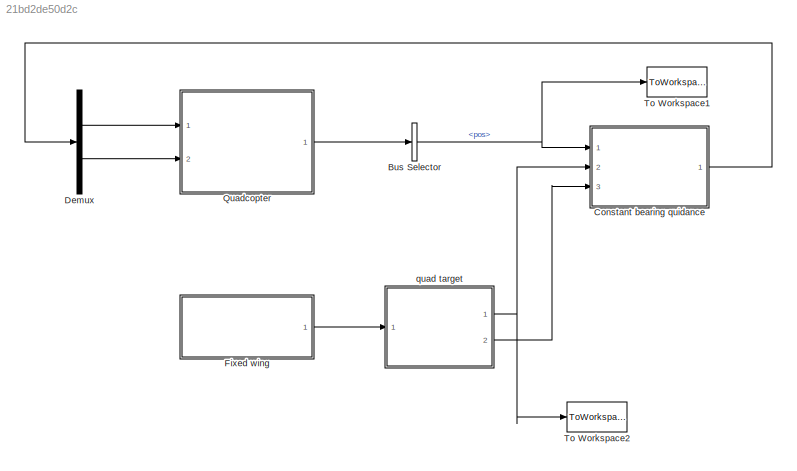
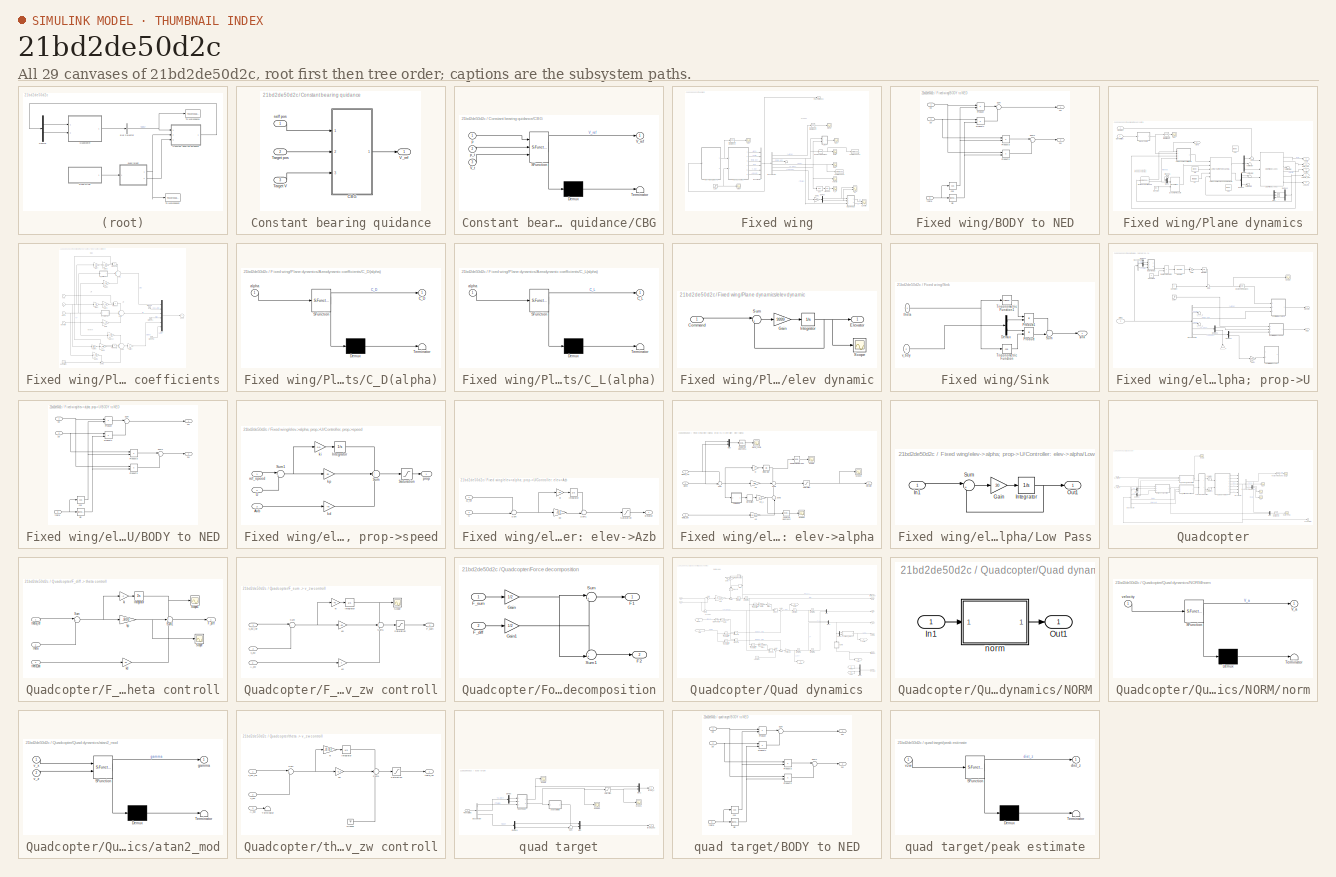
[diagram: thumbnail index - all 29 canvases of the model, root first then tree order]
MODEL slx_21bd2de50d2c
KIND model
CONFIG AbsTol = auto
CONFIG EnableMultiTasking = off
CONFIG FixedStep = 2e-4
CONFIG MaxStep = auto
CONFIG MinStep = auto
CONFIG RelTol = 1e-3
CONFIG SampleTimeConstraint = Unconstrained
CONFIG Solver = FixedStepAuto
CONFIG SolverName = FixedStepAuto
CONFIG StartTime = 0.0
CONFIG StopTime = 6
BLOCK [BusSelector] Bus Selector
  OutputAsBus = off
  OutputSignals = pos
  Ports = [1, 1]
BLOCK [SubSystem] Constant bearing quidance
  Ports = [3, 1]
  RequestExecContextInheritance = off
  Variant = off
BLOCK [SubSystem] Constant bearing quidance/CBG
  ErrorFcn = Stateflow.Translate.translate
  PermitHierarchicalResolution = ExplicitOnly
  Ports = [3, 1]
  RequestExecContextInheritance = off
  SFBlockType = MATLAB Function
  TreatAsAtomicUnit = on
  Variant = off
BLOCK [Demux] Constant bearing quidance/CBG/ Demux 
  Outputs = 1
  Ports = [1, 1]
BLOCK [S-Function] Constant bearing quidance/CBG/ SFunction 
  EnableBusSupport = on
  FunctionName = sf_sfun
  PortCounts = [3 2]
  Ports = [3, 2]
  SFcnIsStateOwnerBlock = off
  SFunctionDeploymentMode = off
  Tag = Stateflow S-Function Parabolic_alpha_sim 6
BLOCK [Terminator] Constant bearing quidance/CBG/ Terminator 
BLOCK [Outport] Constant bearing quidance/CBG/V_ref
  IconDisplay = Port number
BLOCK [Inport] Constant bearing quidance/CBG/V_t
  IconDisplay = Port number
  Port = 3
BLOCK [Inport] Constant bearing quidance/CBG/p
  IconDisplay = Port number
BLOCK [Inport] Constant bearing quidance/CBG/p_t
  IconDisplay = Port number
  Port = 2
BLOCK [Inport] Constant bearing quidance/Target V
  IconDisplay = Port number
  Port = 3
BLOCK [Inport] Constant bearing quidance/Target pos
  IconDisplay = Port number
  Port = 2
BLOCK [Outport] Constant bearing quidance/V_ref
  IconDisplay = Port number
BLOCK [Inport] Constant bearing quidance/self pos
  IconDisplay = Port number
BLOCK [Demux] Demux
  DisplayOption = bar
  Outputs = 2
  Ports = [1, 2]
BLOCK [SubSystem] Fixed wing
  Ports = [0, 1]
  RequestExecContextInheritance = off
  Variant = off
BLOCK [Sqrt] Fixed wing/Airspeed
  AlgorithmType = Newton-Raphson
BLOCK [SubSystem] Fixed wing/BODY to NED
  Ports = [3, 2]
  RequestExecContextInheritance = off
  Variant = off
BLOCK [Product] Fixed wing/BODY to NED/Product
  InputSameDT = off
  OutDataTypeStr = Inherit: Inherit via internal rule
  Ports = [2, 1]
  RndMeth = Floor
  SaturateOnIntegerOverflow = off
BLOCK [Product] Fixed wing/BODY to NED/Product1
  InputSameDT = off
  OutDataTypeStr = Inherit: Inherit via internal rule
  Ports = [2, 1]
  RndMeth = Floor
  SaturateOnIntegerOverflow = off
BLOCK [Product] Fixed wing/BODY to NED/Product2
  InputSameDT = off
  OutDataTypeStr = Inherit: Inherit via internal rule
  Ports = [2, 1]
  RndMeth = Floor
  SaturateOnIntegerOverflow = off
BLOCK [Product] Fixed wing/BODY to NED/Product3
  InputSameDT = off
  OutDataTypeStr = Inherit: Inherit via internal rule
  Ports = [2, 1]
  RndMeth = Floor
  SaturateOnIntegerOverflow = off
BLOCK [Sum] Fixed wing/BODY to NED/Sum
  IconShape = round
  InputSameDT = off
  Inputs = |++
  OutDataTypeStr = Inherit: Inherit via internal rule
  Ports = [2, 1]
  SaturateOnIntegerOverflow = off
BLOCK [Sum] Fixed wing/BODY to NED/Sum1
  IconShape = round
  InputSameDT = off
  Inputs = |+-
  OutDataTypeStr = Inherit: Inherit via internal rule
  Ports = [2, 1]
  SaturateOnIntegerOverflow = off
BLOCK [Trigonometry] Fixed wing/BODY to NED/cos 
  Operator = cos
  Ports = [1, 1]
BLOCK [Trigonometry] Fixed wing/BODY to NED/sin
  Ports = [1, 1]
BLOCK [Inport] Fixed wing/BODY to NED/theta
  IconDisplay = Port number
  Port = 3
BLOCK [Inport] Fixed wing/BODY to NED/xb
  IconDisplay = Port number
BLOCK [Outport] Fixed wing/BODY to NED/xw
  IconDisplay = Port number
BLOCK [Inport] Fixed wing/BODY to NED/zb
  IconDisplay = Port number
  Port = 2
BLOCK [Outport] Fixed wing/BODY to NED/zw
  IconDisplay = Port number
  Port = 2
BLOCK [BusCreator] Fixed wing/Bus Creator
  DisplayOption = bar
  InheritFromInputs = on
  Inputs = 6
  Ports = [6, 1]
BLOCK [BusSelector] Fixed wing/Bus Selector
  OutputAsBus = off
  OutputSignals = Alpha,Theta,theta_dot,pos,V_bdy,Axb;Azb
  Ports = [1, 6]
BLOCK [Demux] Fixed wing/Demux
  DisplayOption = bar
  Outputs = 2
  Ports = [1, 2]
BLOCK [Scope] Fixed wing/G_world
  NumInputPorts = 2
  Ports = [2]
  ScopeSpecificationString = Simulink.scopes.TimeScopeBlockCfg('CurrentConfiguration', extmgr.ConfigurationSet(extmgr.Configuration('Core','General UI',true),extmgr.Configuration('Core','Source UI',true),extmgr.Configuration('Sources','WiredSimulink',true,'DataLoggingVariableName','ScopeData1'),extmgr.Configuration('Visuals','Time Domain',true,'SerializedDisplays',{struct('MinYLimReal','0.53716','MaxYLimReal','1.0926','YLabel...<+1431ch>
BLOCK [Gain] Fixed wing/Gain2
  Gain = 1/9.81
  OutDataTypeStr = Inherit: Inherit via internal rule
  ParamDataTypeStr = Inherit: Inherit via internal rule
  SaturateOnIntegerOverflow = off
BLOCK [Scope] Fixed wing/Gs
  NumInputPorts = 2
  Ports = [2]
  ScopeSpecificationString = Simulink.scopes.TimeScopeBlockCfg('CurrentConfiguration', extmgr.ConfigurationSet(extmgr.Configuration('Core','General UI',true),extmgr.Configuration('Core','Source UI',true),extmgr.Configuration('Sources','WiredSimulink',true,'DataLoggingVariableName','ScopeData1'),extmgr.Configuration('Visuals','Time Domain',true,'SerializedDisplays',{struct('MinYLimReal','-4.08638','MaxYLimReal','3.15613','YLab...<+1447ch>
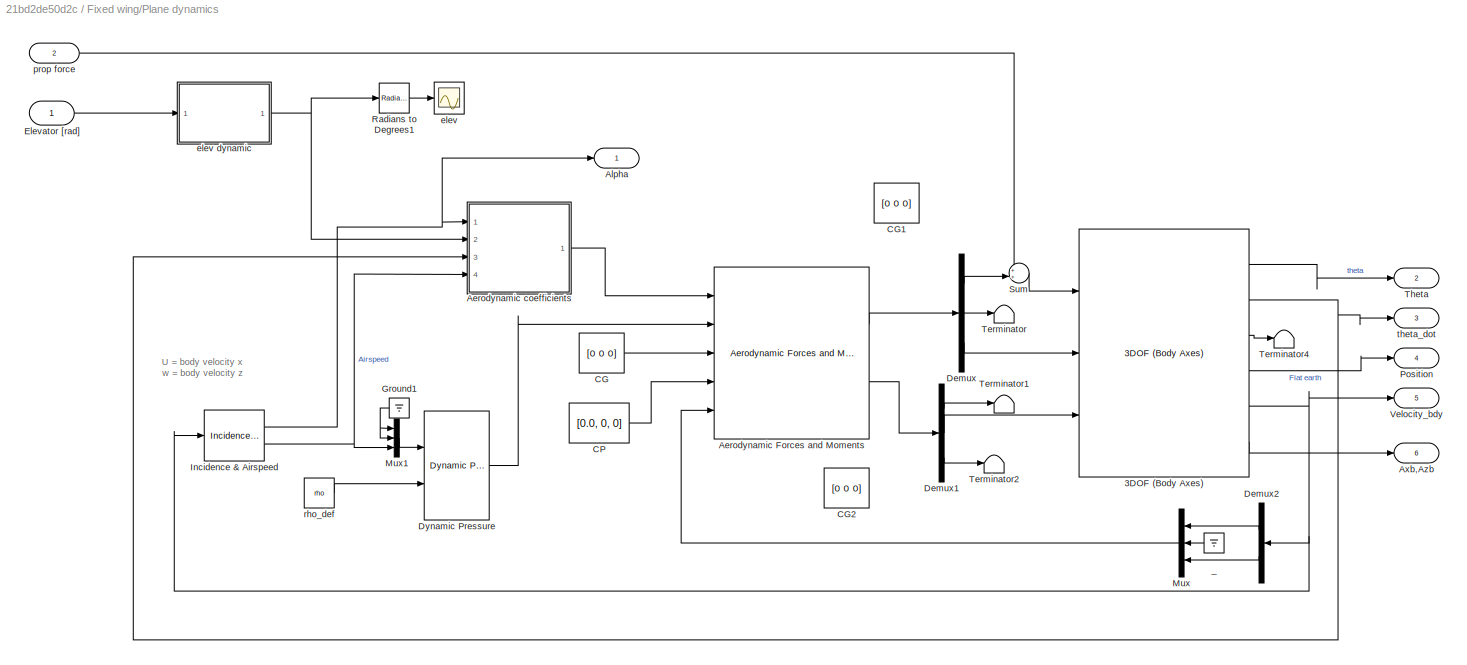
BLOCK [SubSystem] Fixed wing/Plane dynamics
  Ports = [2, 6]
  RequestExecContextInheritance = off
  Variant = off
BLOCK [Reference] Fixed wing/Plane dynamics/3DOF (Body Axes)  REF=shared3dof/3DOF (Body Axes)
  Ports = [3, 6]
  SourceBlock = shared3dof/3DOF (Body Axes)
  SourceType = 3DOF EoM
BLOCK [Reference] Fixed wing/Plane dynamics/Aerodynamic Forces and Moments   REF=aerolibadyn/Aerodynamic
Forces and Moments 
  Ports = [5, 2]
  SourceBlock = aerolibadyn/Aerodynamic\nForces and Moments
  SourceProductBaseCode = AE
  SourceProductName = Aerospace Blockset
  SourceType = Aerodynamic Forces and Moments
BLOCK [SubSystem] Fixed wing/Plane dynamics/Aerodynamic coefficients
  Ports = [4, 1]
  RequestExecContextInheritance = off
  Variant = off
BLOCK [Inport] Fixed wing/Plane dynamics/Aerodynamic coefficients/Alpha
  IconDisplay = Port number
BLOCK [SubSystem] Fixed wing/Plane dynamics/Aerodynamic coefficients/C_D(alpha)
  ErrorFcn = Stateflow.Translate.translate
  PermitHierarchicalResolution = ExplicitOnly
  Ports = [1, 1]
  RequestExecContextInheritance = off
  SFBlockType = MATLAB Function
  TreatAsAtomicUnit = on
  Variant = off
BLOCK [Demux] Fixed wing/Plane dynamics/Aerodynamic coefficients/C_D(alpha)/ Demux 
  Outputs = 1
  Ports = [1, 1]
BLOCK [S-Function] Fixed wing/Plane dynamics/Aerodynamic coefficients/C_D(alpha)/ SFunction 
  EnableBusSupport = on
  FunctionName = sf_sfun
  PortCounts = [1 2]
  Ports = [1, 2]
  SFcnIsStateOwnerBlock = off
  SFunctionDeploymentMode = off
  Tag = Stateflow S-Function Parabolic_alpha_sim 1
BLOCK [Terminator] Fixed wing/Plane dynamics/Aerodynamic coefficients/C_D(alpha)/ Terminator 
BLOCK [Outport] Fixed wing/Plane dynamics/Aerodynamic coefficients/C_D(alpha)/C_D
  IconDisplay = Port number
BLOCK [Inport] Fixed wing/Plane dynamics/Aerodynamic coefficients/C_D(alpha)/alpha
  IconDisplay = Port number
BLOCK [SubSystem] Fixed wing/Plane dynamics/Aerodynamic coefficients/C_L(alpha)
  ErrorFcn = Stateflow.Translate.translate
  PermitHierarchicalResolution = ExplicitOnly
  Ports = [1, 1]
  RequestExecContextInheritance = off
  SFBlockType = MATLAB Function
  TreatAsAtomicUnit = on
  Variant = off
BLOCK [Demux] Fixed wing/Plane dynamics/Aerodynamic coefficients/C_L(alpha)/ Demux 
  Outputs = 1
  Ports = [1, 1]
BLOCK [S-Function] Fixed wing/Plane dynamics/Aerodynamic coefficients/C_L(alpha)/ SFunction 
  EnableBusSupport = on
  FunctionName = sf_sfun
  PortCounts = [1 2]
  Ports = [1, 2]
  SFcnIsStateOwnerBlock = off
  SFunctionDeploymentMode = off
  Tag = Stateflow S-Function Parabolic_alpha_sim 2
BLOCK [Terminator] Fixed wing/Plane dynamics/Aerodynamic coefficients/C_L(alpha)/ Terminator 
BLOCK [Outport] Fixed wing/Plane dynamics/Aerodynamic coefficients/C_L(alpha)/C_L
  IconDisplay = Port number
BLOCK [Inport] Fixed wing/Plane dynamics/Aerodynamic coefficients/C_L(alpha)/alpha
  IconDisplay = Port number
BLOCK [Outport] Fixed wing/Plane dynamics/Aerodynamic coefficients/Coeff
  IconDisplay = Port number
BLOCK [Constant] Fixed wing/Plane dynamics/Aerodynamic coefficients/Constant
  Value = C_m0
BLOCK [Gain] Fixed wing/Plane dynamics/Aerodynamic coefficients/Gain
  Gain = C_Le
  OutDataTypeStr = Inherit: Inherit via internal rule
  ParamDataTypeStr = Inherit: Inherit via internal rule
  SaturateOnIntegerOverflow = off
BLOCK [Gain] Fixed wing/Plane dynamics/Aerodynamic coefficients/Gain1
  Gain = C_Lq
  OutDataTypeStr = Inherit: Inherit via internal rule
  ParamDataTypeStr = Inherit: Inherit via internal rule
  SaturateOnIntegerOverflow = off
BLOCK [Gain] Fixed wing/Plane dynamics/Aerodynamic coefficients/Gain10
  Gain = C_me
  OutDataTypeStr = Inherit: Inherit via internal rule
  ParamDataTypeStr = Inherit: Inherit via internal rule
  SaturateOnIntegerOverflow = off
BLOCK [Gain] Fixed wing/Plane dynamics/Aerodynamic coefficients/Gain2
  Gain = C_De
  OutDataTypeStr = Inherit: Inherit via internal rule
  ParamDataTypeStr = Inherit: Inherit via internal rule
  SaturateOnIntegerOverflow = off
BLOCK [Gain] Fixed wing/Plane dynamics/Aerodynamic coefficients/Gain3
  Gain = C_Dq
  OutDataTypeStr = Inherit: Inherit via internal rule
  ParamDataTypeStr = Inherit: Inherit via internal rule
  SaturateOnIntegerOverflow = off
BLOCK [Gain] Fixed wing/Plane dynamics/Aerodynamic coefficients/Gain4
  Gain = c
  OutDataTypeStr = Inherit: Inherit via internal rule
  ParamDataTypeStr = Inherit: Inherit via internal rule
  SaturateOnIntegerOverflow = off
BLOCK [Gain] Fixed wing/Plane dynamics/Aerodynamic coefficients/Gain5
  Gain = c/2
  OutDataTypeStr = Inherit: Inherit via internal rule
  ParamDataTypeStr = Inherit: Inherit via internal rule
  SaturateOnIntegerOverflow = off
BLOCK [Gain] Fixed wing/Plane dynamics/Aerodynamic coefficients/Gain6
  Gain = C_ma
  OutDataTypeStr = Inherit: Inherit via internal rule
  ParamDataTypeStr = Inherit: Inherit via internal rule
  SaturateOnIntegerOverflow = off
BLOCK [Gain] Fixed wing/Plane dynamics/Aerodynamic coefficients/Gain7
  Gain = c/2
  OutDataTypeStr = Inherit: Inherit via internal rule
  ParamDataTypeStr = Inherit: Inherit via internal rule
  SaturateOnIntegerOverflow = off
BLOCK [Gain] Fixed wing/Plane dynamics/Aerodynamic coefficients/Gain8
  Gain = c/2
  OutDataTypeStr = Inherit: Inherit via internal rule
  ParamDataTypeStr = Inherit: Inherit via internal rule
  SaturateOnIntegerOverflow = off
BLOCK [Gain] Fixed wing/Plane dynamics/Aerodynamic coefficients/Gain9
  Gain = C_mq
  OutDataTypeStr = Inherit: Inherit via internal rule
  ParamDataTypeStr = Inherit: Inherit via internal rule
  SaturateOnIntegerOverflow = off
BLOCK [Ground] Fixed wing/Plane dynamics/Aerodynamic coefficients/Ground
BLOCK [Ground] Fixed wing/Plane dynamics/Aerodynamic coefficients/Ground1
BLOCK [Ground] Fixed wing/Plane dynamics/Aerodynamic coefficients/Ground2
BLOCK [Mux] Fixed wing/Plane dynamics/Aerodynamic coefficients/Mux
  DisplayOption = bar
  Inputs = 6
  Ports = [6, 1]
BLOCK [Product] Fixed wing/Plane dynamics/Aerodynamic coefficients/Product
  InputSameDT = off
  Inputs = /*
  OutDataTypeStr = Inherit: Inherit via internal rule
  Ports = [2, 1]
  RndMeth = Floor
  SaturateOnIntegerOverflow = off
BLOCK [Product] Fixed wing/Plane dynamics/Aerodynamic coefficients/Product1
  InputSameDT = off
  Inputs = /*
  OutDataTypeStr = Inherit: Inherit via internal rule
  Ports = [2, 1]
  RndMeth = Floor
  SaturateOnIntegerOverflow = off
BLOCK [Product] Fixed wing/Plane dynamics/Aerodynamic coefficients/Product2
  InputSameDT = off
  Inputs = /*
  OutDataTypeStr = Inherit: Inherit via internal rule
  Ports = [2, 1]
  RndMeth = Floor
  SaturateOnIntegerOverflow = off
BLOCK [Sum] Fixed wing/Plane dynamics/Aerodynamic coefficients/Sum
  IconShape = round
  InputSameDT = off
  Inputs = +++
  OutDataTypeStr = Inherit: Inherit via internal rule
  Ports = [3, 1]
  SaturateOnIntegerOverflow = off
BLOCK [Sum] Fixed wing/Plane dynamics/Aerodynamic coefficients/Sum1
  IconShape = round
  InputSameDT = off
  Inputs = +++
  OutDataTypeStr = Inherit: Inherit via internal rule
  Ports = [3, 1]
  SaturateOnIntegerOverflow = off
BLOCK [Sum] Fixed wing/Plane dynamics/Aerodynamic coefficients/Sum2
  IconShape = round
  InputSameDT = off
  Inputs = +++
  OutDataTypeStr = Inherit: Inherit via internal rule
  Ports = [3, 1]
  SaturateOnIntegerOverflow = off
BLOCK [Sum] Fixed wing/Plane dynamics/Aerodynamic coefficients/Sum3
  IconShape = round
  InputSameDT = off
  Inputs = ++|
  OutDataTypeStr = Inherit: Inherit via internal rule
  Ports = [2, 1]
  SaturateOnIntegerOverflow = off
BLOCK [Inport] Fixed wing/Plane dynamics/Aerodynamic coefficients/V_a
  IconDisplay = Port number
  Port = 4
BLOCK [Inport] Fixed wing/Plane dynamics/Aerodynamic coefficients/elevator
  IconDisplay = Port number
  Port = 2
BLOCK [Inport] Fixed wing/Plane dynamics/Aerodynamic coefficients/q
  IconDisplay = Port number
  Port = 3
BLOCK [Outport] Fixed wing/Plane dynamics/Alpha
  IconDisplay = Port number
BLOCK [Outport] Fixed wing/Plane dynamics/Axb,Azb
  IconDisplay = Port number
  Port = 6
BLOCK [Constant] Fixed wing/Plane dynamics/CG
  Value = [0 0 0]
BLOCK [Constant] Fixed wing/Plane dynamics/CG1
  Value = [0 0 0]
BLOCK [Constant] Fixed wing/Plane dynamics/CG2
  Value = [0 0 0]
BLOCK [Constant] Fixed wing/Plane dynamics/CP
  Value = [0.0, 0, 0]
BLOCK [Demux] Fixed wing/Plane dynamics/Demux
  DisplayOption = bar
  Outputs = 3
  Ports = [1, 3]
BLOCK [Demux] Fixed wing/Plane dynamics/Demux1
  DisplayOption = bar
  Outputs = 3
  Ports = [1, 3]
BLOCK [Demux] Fixed wing/Plane dynamics/Demux2
  DisplayOption = bar
  Outputs = 2
  Ports = [1, 2]
BLOCK [Reference] Fixed wing/Plane dynamics/Dynamic Pressure  REF=aerolibasang/Dynamic Pressure
  Ports = [2, 1]
  SourceBlock = aerolibasang/Dynamic Pressure
  SourceProductBaseCode = AE
  SourceProductName = Aerospace Blockset
  SourceType = Dynamic Pressure
BLOCK [Inport] Fixed wing/Plane dynamics/Elevator [rad]
  IconDisplay = Port number
BLOCK [Ground] Fixed wing/Plane dynamics/Ground1
BLOCK [Reference] Fixed wing/Plane dynamics/Incidence & Airspeed  REF=aerolibasang/Incidence 
& Airspeed
  Ports = [1, 2]
  SourceBlock = aerolibasang/Incidence \n& Airspeed
  SourceProductBaseCode = AE
  SourceProductName = Aerospace Blockset
  SourceType = Incidence&Airspeed
BLOCK [Mux] Fixed wing/Plane dynamics/Mux
  DisplayOption = bar
  Inputs = 3
  Ports = [3, 1]
BLOCK [Mux] Fixed wing/Plane dynamics/Mux1
  DisplayOption = bar
  Inputs = 3
  Ports = [3, 1]
BLOCK [Outport] Fixed wing/Plane dynamics/Position
  IconDisplay = Port number
  Port = 4
BLOCK [Reference] Fixed wing/Plane dynamics/Radians to Degrees1  REF=simulink_extras/Transformations/Radians
to Degrees
  Ports = [1, 1]
  SourceBlock = simulink_extras/Transformations/Radians\nto Degrees
  SourceProductBaseCode = SL
  SourceProductName = Simulink
  SourceType = RadiansToDegrees
BLOCK [Sum] Fixed wing/Plane dynamics/Sum
  IconShape = round
  InputSameDT = off
  Inputs = ++|
  OutDataTypeStr = Inherit: Inherit via internal rule
  Ports = [2, 1]
  SaturateOnIntegerOverflow = off
BLOCK [Terminator] Fixed wing/Plane dynamics/Terminator
BLOCK [Terminator] Fixed wing/Plane dynamics/Terminator1
BLOCK [Terminator] Fixed wing/Plane dynamics/Terminator2
BLOCK [Terminator] Fixed wing/Plane dynamics/Terminator4
BLOCK [Outport] Fixed wing/Plane dynamics/Theta
  IconDisplay = Port number
  Port = 2
BLOCK [Outport] Fixed wing/Plane dynamics/Velocity_bdy
  IconDisplay = Port number
  Port = 5
BLOCK [Ground] Fixed wing/Plane dynamics/_
BLOCK [Scope] Fixed wing/Plane dynamics/elev
  NumInputPorts = 1
  Ports = [1]
  ScopeSpecificationString = Simulink.scopes.TimeScopeBlockCfg('CurrentConfiguration', extmgr.ConfigurationSet(extmgr.Configuration('Core','General UI',true),extmgr.Configuration('Core','Source UI',true),extmgr.Configuration('Sources','WiredSimulink',true,'DataLoggingVariableName','ScopeData5'),extmgr.Configuration('Visuals','Time Domain',true,'SerializedDisplays',{struct('MinYLimReal','-36.57308','MaxYLimReal','84.06368','YL...<+1433ch>
BLOCK [SubSystem] Fixed wing/Plane dynamics/elev dynamic
  Commented = through
  Ports = [1, 1]
  RequestExecContextInheritance = off
  Variant = off
BLOCK [Inport] Fixed wing/Plane dynamics/elev dynamic/Command
  IconDisplay = Port number
BLOCK [Outport] Fixed wing/Plane dynamics/elev dynamic/Elevator
  IconDisplay = Port number
BLOCK [Gain] Fixed wing/Plane dynamics/elev dynamic/Gain
  Gain = 9999
  OutDataTypeStr = Inherit: Inherit via internal rule
  ParamDataTypeStr = Inherit: Inherit via internal rule
  SaturateOnIntegerOverflow = off
BLOCK [Integrator] Fixed wing/Plane dynamics/elev dynamic/Integrator
  Ports = [1, 1]
BLOCK [Scope] Fixed wing/Plane dynamics/elev dynamic/Scope
  NumInputPorts = 1
  Ports = [1]
  ScopeSpecificationString = Simulink.scopes.TimeScopeBlockCfg('CurrentConfiguration', extmgr.ConfigurationSet(extmgr.Configuration('Core','General UI',true),extmgr.Configuration('Core','Source UI',true),extmgr.Configuration('Sources','WiredSimulink',true,'DataLoggingVariableName','ScopeData6'),extmgr.Configuration('Visuals','Time Domain',true,'SerializedDisplays',{struct('MinYLimReal','-0.125','MaxYLimReal','1.125','YLabelRe...<+1430ch>
BLOCK [Sum] Fixed wing/Plane dynamics/elev dynamic/Sum
  IconShape = round
  InputSameDT = off
  Inputs = |+-
  OutDataTypeStr = Inherit: Inherit via internal rule
  Ports = [2, 1]
  SaturateOnIntegerOverflow = off
BLOCK [Inport] Fixed wing/Plane dynamics/prop force
  IconDisplay = Port number
  Port = 2
BLOCK [Constant] Fixed wing/Plane dynamics/rho_def
  Value = rho
BLOCK [Outport] Fixed wing/Plane dynamics/theta_dot
  IconDisplay = Port number
  Port = 3
BLOCK [Outport] Fixed wing/Plane state bus
  IconDisplay = Port number
BLOCK [Reference] Fixed wing/Radians to Degrees  REF=simulink_extras/Transformations/Radians
to Degrees
  Ports = [1, 1]
  SourceBlock = simulink_extras/Transformations/Radians\nto Degrees
  SourceProductBaseCode = SL
  SourceProductName = Simulink
  SourceType = RadiansToDegrees
BLOCK [Reference] Fixed wing/Radians to Degrees1  REF=simulink_extras/Transformations/Radians
to Degrees
  Ports = [1, 1]
  SourceBlock = simulink_extras/Transformations/Radians\nto Degrees
  SourceProductBaseCode = SL
  SourceProductName = Simulink
  SourceType = RadiansToDegrees
BLOCK [Reference] Fixed wing/Radians to Degrees2  REF=simulink_extras/Transformations/Radians
to Degrees
  Ports = [1, 1]
  SourceBlock = simulink_extras/Transformations/Radians\nto Degrees
  SourceProductBaseCode = SL
  SourceProductName = Simulink
  SourceType = RadiansToDegrees
BLOCK [SubSystem] Fixed wing/Sink
  Ports = [2, 1]
  RequestExecContextInheritance = off
  Variant = off
BLOCK [Demux] Fixed wing/Sink/Demux
  DisplayOption = bar
  Outputs = 2
  Ports = [1, 2]
BLOCK [Product] Fixed wing/Sink/Product
  InputSameDT = off
  OutDataTypeStr = Inherit: Inherit via internal rule
  Ports = [2, 1]
  RndMeth = Floor
  SaturateOnIntegerOverflow = off
BLOCK [Product] Fixed wing/Sink/Product1
  InputSameDT = off
  OutDataTypeStr = Inherit: Inherit via internal rule
  Ports = [2, 1]
  RndMeth = Floor
  SaturateOnIntegerOverflow = off
BLOCK [Sum] Fixed wing/Sink/Sum
  IconShape = round
  InputSameDT = off
  Inputs = -+|
  OutDataTypeStr = Inherit: Inherit via internal rule
  Ports = [2, 1]
  SaturateOnIntegerOverflow = off
BLOCK [Trigonometry] Fixed wing/Sink/Trigonometric Function
  Operator = cos
  Ports = [1, 1]
BLOCK [Trigonometry] Fixed wing/Sink/Trigonometric Function1
  Ports = [1, 1]
BLOCK [Outport] Fixed wing/Sink/sink
  IconDisplay = Port number
BLOCK [Inport] Fixed wing/Sink/theta
  IconDisplay = Port number
BLOCK [Inport] Fixed wing/Sink/v_bdy
  IconDisplay = Port number
  Port = 2
BLOCK [ToWorkspace] Fixed wing/To Workspace
  FixptAsFi = on
  MaxDataPoints = inf
  Ports = [1]
  SampleTime = -1
  Save2DSignal = 3-D array (concatenate along third dimension)
  SaveFormat = Timeseries
  VariableName = pos
BLOCK [ToWorkspace] Fixed wing/To Workspace1
  FixptAsFi = on
  MaxDataPoints = inf
  Ports = [1]
  SampleTime = -1
  Save2DSignal = 3-D array (concatenate along third dimension)
  SaveFormat = Timeseries
  VariableName = theta
BLOCK [Step] Fixed wing/U_ref
  After = 0
  SampleTime = 0
  Time = 10.5
BLOCK [Scope] Fixed wing/V_a
  NumInputPorts = 1
  Ports = [1]
  ScopeSpecificationString = Simulink.scopes.TimeScopeBlockCfg('CurrentConfiguration', extmgr.ConfigurationSet(extmgr.Configuration('Core','General UI',true),extmgr.Configuration('Core','Source UI',true),extmgr.Configuration('Sources','WiredSimulink',true,'DataLoggingVariableName','ScopeData1'),extmgr.Configuration('Visuals','Time Domain',true,'SerializedDisplays',{struct('MinYLimReal','0.518','MaxYLimReal','33.27578','YLabel...<+1460ch>
BLOCK [Scope] Fixed wing/alpha
  NumInputPorts = 1
  Ports = [1]
  ScopeSpecificationString = Simulink.scopes.TimeScopeBlockCfg('CurrentConfiguration', extmgr.ConfigurationSet(extmgr.Configuration('Core','General UI',true),extmgr.Configuration('Core','Source UI',true),extmgr.Configuration('Sources','WiredSimulink',true,'DataLoggingVariableName','ScopeData2'),extmgr.Configuration('Visuals','Time Domain',true,'SerializedDisplays',{struct('MinYLimReal','-2.41916','MaxYLimReal','9.50409','YLab...<+1451ch>
BLOCK [Reference] Fixed wing/dot  REF=aerolibasang/Incidence 
& Airspeed/dot
  Ports = [1, 1]
  SourceBlock = aerolibasang/Incidence \n& Airspeed/dot
  SourceProductBaseCode = AE
  SourceProductName = Aerospace Blockset
  SourceType = SubSystem
BLOCK [Scope] Fixed wing/elev
  NumInputPorts = 1
  Ports = [1]
  ScopeSpecificationString = Simulink.scopes.TimeScopeBlockCfg('CurrentConfiguration', extmgr.ConfigurationSet(extmgr.Configuration('Core','General UI',true),extmgr.Configuration('Core','Source UI',true),extmgr.Configuration('Sources','WiredSimulink',true,'DataLoggingVariableName','ScopeData2'),extmgr.Configuration('Visuals','Time Domain',true,'SerializedDisplays',{struct('MinYLimReal','-90.00000','MaxYLimReal','90.00000','YL...<+1482ch>
BLOCK [SubSystem] Fixed wing/elev->alpha; prop->U
  Ports = [1, 2]
  RequestExecContextInheritance = off
  Variant = off
  VariantControl = Variant
BLOCK [SubSystem] Fixed wing/elev->alpha; prop->U/BODY to NED
  Ports = [3, 2]
  RequestExecContextInheritance = off
  Variant = off
BLOCK [Product] Fixed wing/elev->alpha; prop->U/BODY to NED/Product
  InputSameDT = off
  OutDataTypeStr = Inherit: Inherit via internal rule
  Ports = [2, 1]
  RndMeth = Floor
  SaturateOnIntegerOverflow = off
BLOCK [Product] Fixed wing/elev->alpha; prop->U/BODY to NED/Product1
  InputSameDT = off
  OutDataTypeStr = Inherit: Inherit via internal rule
  Ports = [2, 1]
  RndMeth = Floor
  SaturateOnIntegerOverflow = off
BLOCK [Product] Fixed wing/elev->alpha; prop->U/BODY to NED/Product2
  InputSameDT = off
  OutDataTypeStr = Inherit: Inherit via internal rule
  Ports = [2, 1]
  RndMeth = Floor
  SaturateOnIntegerOverflow = off
BLOCK [Product] Fixed wing/elev->alpha; prop->U/BODY to NED/Product3
  InputSameDT = off
  OutDataTypeStr = Inherit: Inherit via internal rule
  Ports = [2, 1]
  RndMeth = Floor
  SaturateOnIntegerOverflow = off
BLOCK [Sum] Fixed wing/elev->alpha; prop->U/BODY to NED/Sum
  IconShape = round
  InputSameDT = off
  Inputs = |++
  OutDataTypeStr = Inherit: Inherit via internal rule
  Ports = [2, 1]
  SaturateOnIntegerOverflow = off
BLOCK [Sum] Fixed wing/elev->alpha; prop->U/BODY to NED/Sum1
  IconShape = round
  InputSameDT = off
  Inputs = |+-
  OutDataTypeStr = Inherit: Inherit via internal rule
  Ports = [2, 1]
  SaturateOnIntegerOverflow = off
BLOCK [Trigonometry] Fixed wing/elev->alpha; prop->U/BODY to NED/cos 
  Operator = cos
  Ports = [1, 1]
BLOCK [Trigonometry] Fixed wing/elev->alpha; prop->U/BODY to NED/sin
  Ports = [1, 1]
BLOCK [Inport] Fixed wing/elev->alpha; prop->U/BODY to NED/theta
  IconDisplay = Port number
  Port = 3
BLOCK [Inport] Fixed wing/elev->alpha; prop->U/BODY to NED/xb
  IconDisplay = Port number
BLOCK [Outport] Fixed wing/elev->alpha; prop->U/BODY to NED/xw
  IconDisplay = Port number
BLOCK [Inport] Fixed wing/elev->alpha; prop->U/BODY to NED/zb
  IconDisplay = Port number
  Port = 2
BLOCK [Outport] Fixed wing/elev->alpha; prop->U/BODY to NED/zw
  IconDisplay = Port number
  Port = 2
BLOCK [BusSelector] Fixed wing/elev->alpha; prop->U/Bus Selector1
  OutputAsBus = off
  OutputSignals = Alpha,Theta,theta_dot,pos,V_bdy,Axb;Azb
  Ports = [1, 6]
BLOCK [BusSelector] Fixed wing/elev->alpha; prop->U/Bus Selector2
  OutputAsBus = off
  OutputSignals = V_bdy,Theta
  Ports = [1, 2]
BLOCK [Constant] Fixed wing/elev->alpha; prop->U/Constant
  Value = 0
BLOCK [Constant] Fixed wing/elev->alpha; prop->U/Constant1
  Value = 0
BLOCK [SubSystem] Fixed wing/elev->alpha; prop->U/Controller, prop->speed
  Ports = [3, 1]
  RequestExecContextInheritance = off
  Variant = off
BLOCK [Inport] Fixed wing/elev->alpha; prop->U/Controller, prop->speed/Axb
  IconDisplay = Port number
  Port = 3
BLOCK [Integrator] Fixed wing/elev->alpha; prop->U/Controller, prop->speed/Integrator
  Ports = [1, 1]
BLOCK [Saturate] Fixed wing/elev->alpha; prop->U/Controller, prop->speed/Saturation
  InputPortMap = u0
  LowerLimit = -80
  Ports = [1, 1]
  UpperLimit = 80*1
BLOCK [Sum] Fixed wing/elev->alpha; prop->U/Controller, prop->speed/Sum
  IconShape = round
  InputSameDT = off
  Inputs = +++
  OutDataTypeStr = Inherit: Inherit via internal rule
  Ports = [3, 1]
  SaturateOnIntegerOverflow = off
BLOCK [Sum] Fixed wing/elev->alpha; prop->U/Controller, prop->speed/Sum1
  IconShape = round
  InputSameDT = off
  Inputs = |+-
  OutDataTypeStr = Inherit: Inherit via internal rule
  Ports = [2, 1]
  SaturateOnIntegerOverflow = off
BLOCK [Inport] Fixed wing/elev->alpha; prop->U/Controller, prop->speed/U
  IconDisplay = Port number
  Port = 2
BLOCK [Gain] Fixed wing/elev->alpha; prop->U/Controller, prop->speed/kd
  Gain = -70
  OutDataTypeStr = Inherit: Inherit via internal rule
  ParamDataTypeStr = Inherit: Inherit via internal rule
  SaturateOnIntegerOverflow = off
BLOCK [Gain] Fixed wing/elev->alpha; prop->U/Controller, prop->speed/ki
  Gain = 0.5
  OutDataTypeStr = Inherit: Inherit via internal rule
  ParamDataTypeStr = Inherit: Inherit via internal rule
  SaturateOnIntegerOverflow = off
BLOCK [Gain] Fixed wing/elev->alpha; prop->U/Controller, prop->speed/kp
  Gain = 20
  OutDataTypeStr = Inherit: Inherit via internal rule
  ParamDataTypeStr = Inherit: Inherit via internal rule
  SaturateOnIntegerOverflow = off
BLOCK [Outport] Fixed wing/elev->alpha; prop->U/Controller, prop->speed/prop
  IconDisplay = Port number
BLOCK [Inport] Fixed wing/elev->alpha; prop->U/Controller, prop->speed/ref_speed
  IconDisplay = Port number
BLOCK [SubSystem] Fixed wing/elev->alpha; prop->U/Controller: elev->Azb
  Commented = on
  Ports = [2, 1]
  RequestExecContextInheritance = off
  Variant = off
BLOCK [Inport] Fixed wing/elev->alpha; prop->U/Controller: elev->Azb/G
  IconDisplay = Port number
  Port = 2
BLOCK [Inport] Fixed wing/elev->alpha; prop->U/Controller: elev->Azb/G_ref
  IconDisplay = Port number
BLOCK [Integrator] Fixed wing/elev->alpha; prop->U/Controller: elev->Azb/Integrator
  Ports = [1, 1]
BLOCK [Saturate] Fixed wing/elev->alpha; prop->U/Controller: elev->Azb/Saturation
  InputPortMap = u0
  LowerLimit = -2*pi/5
  Ports = [1, 1]
  UpperLimit = 2*pi/5
BLOCK [Sum] Fixed wing/elev->alpha; prop->U/Controller: elev->Azb/Sum
  IconShape = round
  InputSameDT = off
  Inputs = +-|
  OutDataTypeStr = Inherit: Inherit via internal rule
  Ports = [2, 1]
  SaturateOnIntegerOverflow = off
BLOCK [Sum] Fixed wing/elev->alpha; prop->U/Controller: elev->Azb/Sum1
  IconShape = round
  InputSameDT = off
  Inputs = ++|
  OutDataTypeStr = Inherit: Inherit via internal rule
  Ports = [2, 1]
  SaturateOnIntegerOverflow = off
BLOCK [Outport] Fixed wing/elev->alpha; prop->U/Controller: elev->Azb/elevator
  IconDisplay = Port number
BLOCK [Gain] Fixed wing/elev->alpha; prop->U/Controller: elev->Azb/ki
  Gain = -0.5
  OutDataTypeStr = Inherit: Inherit via internal rule
  ParamDataTypeStr = Inherit: Inherit via internal rule
  SaturateOnIntegerOverflow = off
BLOCK [Gain] Fixed wing/elev->alpha; prop->U/Controller: elev->Azb/kp
  Gain = -0.1
  OutDataTypeStr = Inherit: Inherit via internal rule
  ParamDataTypeStr = Inherit: Inherit via internal rule
  SaturateOnIntegerOverflow = off
BLOCK [SubSystem] Fixed wing/elev->alpha; prop->U/Controller: elev->alpha
  Ports = [3, 1]
  RequestExecContextInheritance = off
  Variant = off
BLOCK [Derivative] Fixed wing/elev->alpha; prop->U/Controller: elev->alpha/Derivative
BLOCK [Integrator] Fixed wing/elev->alpha; prop->U/Controller: elev->alpha/Integrator
  InitialCondition = -5*deg2rad
  Ports = [1, 1]
BLOCK [SubSystem] Fixed wing/elev->alpha; prop->U/Controller: elev->alpha/Low Pass
  Commented = through
  Ports = [1, 1]
  RequestExecContextInheritance = off
  Variant = off
BLOCK [Gain] Fixed wing/elev->alpha; prop->U/Controller: elev->alpha/Low Pass/Gain
  Gain = 30
  OutDataTypeStr = Inherit: Inherit via internal rule
  ParamDataTypeStr = Inherit: Inherit via internal rule
  SaturateOnIntegerOverflow = off
BLOCK [Inport] Fixed wing/elev->alpha; prop->U/Controller: elev->alpha/Low Pass/In1
  IconDisplay = Port number
BLOCK [Integrator] Fixed wing/elev->alpha; prop->U/Controller: elev->alpha/Low Pass/Integrator
  Ports = [1, 1]
BLOCK [Outport] Fixed wing/elev->alpha; prop->U/Controller: elev->alpha/Low Pass/Out1
  IconDisplay = Port number
BLOCK [Sum] Fixed wing/elev->alpha; prop->U/Controller: elev->alpha/Low Pass/Sum
  IconShape = round
  InputSameDT = off
  Inputs = |+-
  OutDataTypeStr = Inherit: Inherit via internal rule
  Ports = [2, 1]
  SaturateOnIntegerOverflow = off
BLOCK [Mux] Fixed wing/elev->alpha; prop->U/Controller: elev->alpha/Mux
  DisplayOption = bar
  Inputs = 2
  Ports = [2, 1]
BLOCK [Reference] Fixed wing/elev->alpha; prop->U/Controller: elev->alpha/Radians to Degrees  REF=simulink_extras/Transformations/Radians
to Degrees
  Ports = [1, 1]
  SourceBlock = simulink_extras/Transformations/Radians\nto Degrees
  SourceProductBaseCode = SL
  SourceProductName = Simulink
  SourceType = RadiansToDegrees
BLOCK [Reference] Fixed wing/elev->alpha; prop->U/Controller: elev->alpha/Radians to Degrees1  REF=simulink_extras/Transformations/Radians
to Degrees
  Ports = [1, 1]
  SourceBlock = simulink_extras/Transformations/Radians\nto Degrees
  SourceProductBaseCode = SL
  SourceProductName = Simulink
  SourceType = RadiansToDegrees
BLOCK [Reference] Fixed wing/elev->alpha; prop->U/Controller: elev->alpha/Radians to Degrees2  REF=simulink_extras/Transformations/Radians
to Degrees
  Ports = [1, 1]
  SourceBlock = simulink_extras/Transformations/Radians\nto Degrees
  SourceProductBaseCode = SL
  SourceProductName = Simulink
  SourceType = RadiansToDegrees
BLOCK [Saturate] Fixed wing/elev->alpha; prop->U/Controller: elev->alpha/Saturation
  InputPortMap = u0
  LowerLimit = -2*pi/5
  Ports = [1, 1]
  UpperLimit = 2*pi/5
BLOCK [Scope] Fixed wing/elev->alpha; prop->U/Controller: elev->alpha/Scope
  NumInputPorts = 1
  Ports = [1]
  ScopeSpecificationString = Simulink.scopes.TimeScopeBlockCfg('CurrentConfiguration', extmgr.ConfigurationSet(extmgr.Configuration('Core','General UI',true),extmgr.Configuration('Core','Source UI',true),extmgr.Configuration('Sources','WiredSimulink',true,'DataLoggingVariableName','ScopeData1'),extmgr.Configuration('Visuals','Time Domain',true,'SerializedDisplays',{struct('MinYLimReal','-86.17803','MaxYLimReal','725.60231','Y...<+1416ch>
BLOCK [Scope] Fixed wing/elev->alpha; prop->U/Controller: elev->alpha/Scope1
  NumInputPorts = 1
  Ports = [1]
  ScopeSpecificationString = Simulink.scopes.TimeScopeBlockCfg('CurrentConfiguration', extmgr.ConfigurationSet(extmgr.Configuration('Core','General UI',true),extmgr.Configuration('Core','Source UI',true),extmgr.Configuration('Sources','WiredSimulink',true,'DataLoggingVariableName','ScopeData2'),extmgr.Configuration('Visuals','Time Domain',true,'SerializedDisplays',{struct('MinYLimReal','-1741.69694','MaxYLimReal','4686.71802'...<+1429ch>
BLOCK [Scope] Fixed wing/elev->alpha; prop->U/Controller: elev->alpha/Scope2
  NumInputPorts = 1
  Ports = [1]
  ScopeSpecificationString = Simulink.scopes.TimeScopeBlockCfg('CurrentConfiguration', extmgr.ConfigurationSet(extmgr.Configuration('Core','General UI',true),extmgr.Configuration('Core','Source UI',true),extmgr.Configuration('Sources','WiredSimulink',true,'DataLoggingVariableName','ScopeData4'),extmgr.Configuration('Visuals','Time Domain',true,'SerializedDisplays',{struct('MinYLimReal','-1.5708','MaxYLimReal','1.5708','YLabel...<+1392ch>
BLOCK [Sum] Fixed wing/elev->alpha; prop->U/Controller: elev->alpha/Sum
  IconShape = round
  InputSameDT = off
  Inputs = +-|
  OutDataTypeStr = Inherit: Inherit via internal rule
  Ports = [2, 1]
  SaturateOnIntegerOverflow = off
BLOCK [Sum] Fixed wing/elev->alpha; prop->U/Controller: elev->alpha/Sum1
  IconShape = round
  InputSameDT = off
  Inputs = +++
  OutDataTypeStr = Inherit: Inherit via internal rule
  Ports = [3, 1]
  SaturateOnIntegerOverflow = off
BLOCK [Sum] Fixed wing/elev->alpha; prop->U/Controller: elev->alpha/Sum2
  IconShape = round
  InputSameDT = off
  Inputs = ++|
  OutDataTypeStr = Inherit: Inherit via internal rule
  Ports = [2, 1]
  SaturateOnIntegerOverflow = off
BLOCK [Inport] Fixed wing/elev->alpha; prop->U/Controller: elev->alpha/alpha
  IconDisplay = Port number
  Port = 2
BLOCK [Scope] Fixed wing/elev->alpha; prop->U/Controller: elev->alpha/alpha_comp
  NumInputPorts = 1
  Ports = [1]
  ScopeSpecificationString = Simulink.scopes.TimeScopeBlockCfg('CurrentConfiguration', extmgr.ConfigurationSet(extmgr.Configuration('Core','General UI',true),extmgr.Configuration('Core','Source UI',true),extmgr.Configuration('Sources','WiredSimulink',true,'DataLoggingVariableName','ScopeData3'),extmgr.Configuration('Visuals','Time Domain',true,'SerializedDisplays',{struct('MinYLimReal','-20.3921','MaxYLimReal','72.64187','YLa...<+1507ch>
BLOCK [Inport] Fixed wing/elev->alpha; prop->U/Controller: elev->alpha/alpha_ref
  IconDisplay = Port number
BLOCK [Outport] Fixed wing/elev->alpha; prop->U/Controller: elev->alpha/elevator
  IconDisplay = Port number
BLOCK [Gain] Fixed wing/elev->alpha; prop->U/Controller: elev->alpha/kd 
  Gain = 0.3*0
  OutDataTypeStr = Inherit: Inherit via internal rule
  ParamDataTypeStr = Inherit: Inherit via internal rule
  SaturateOnIntegerOverflow = off
BLOCK [Gain] Fixed wing/elev->alpha; prop->U/Controller: elev->alpha/kd_1
  Gain = -3.3
  OutDataTypeStr = Inherit: Inherit via internal rule
  ParamDataTypeStr = Inherit: Inherit via internal rule
  SaturateOnIntegerOverflow = off
BLOCK [Gain] Fixed wing/elev->alpha; prop->U/Controller: elev->alpha/ki
  Gain = -4
  OutDataTypeStr = Inherit: Inherit via internal rule
  ParamDataTypeStr = Inherit: Inherit via internal rule
  SaturateOnIntegerOverflow = off
BLOCK [Gain] Fixed wing/elev->alpha; prop->U/Controller: elev->alpha/kp
  Gain = -50
  OutDataTypeStr = Inherit: Inherit via internal rule
  ParamDataTypeStr = Inherit: Inherit via internal rule
  SaturateOnIntegerOverflow = off
BLOCK [Inport] Fixed wing/elev->alpha; prop->U/Controller: elev->alpha/theta_dot
  IconDisplay = Port number
  Port = 3
BLOCK [Reference] Fixed wing/elev->alpha; prop->U/Counter  REF=dspswit3/Counter
  Ports = [1, 1]
  SourceBlock = dspswit3/Counter
  SourceProductBaseCode = DS
  SourceProductName = DSP System Toolbox
  SourceType = Counter
BLOCK [Reference] Fixed wing/elev->alpha; prop->U/Degrees to Radians  REF=simulink_extras/Transformations/Degrees to
Radians
  Ports = [1, 1]
  SourceBlock = simulink_extras/Transformations/Degrees to\nRadians
  SourceProductBaseCode = SL
  SourceProductName = Simulink
  SourceType = DegreesToRadians
BLOCK [Demux] Fixed wing/elev->alpha; prop->U/Demux1
  DisplayOption = bar
  Outputs = 2
  Ports = [1, 2]
BLOCK [Demux] Fixed wing/elev->alpha; prop->U/Demux2
  DisplayOption = bar
  Outputs = 2
  Ports = [1, 2]
BLOCK [Demux] Fixed wing/elev->alpha; prop->U/Demux3
  DisplayOption = bar
  Outputs = 2
  Ports = [1, 2]
BLOCK [Outport] Fixed wing/elev->alpha; prop->U/Elevator
  IconDisplay = Port number
BLOCK [Gain] Fixed wing/elev->alpha; prop->U/Gain
  Gain = 32
  OutDataTypeStr = Inherit: Inherit via internal rule
  ParamDataTypeStr = Inherit: Inherit via internal rule
  SaturateOnIntegerOverflow = off
BLOCK [Gain] Fixed wing/elev->alpha; prop->U/Gain1
  Gain = 1/9.81
  OutDataTypeStr = Inherit: Inherit via internal rule
  ParamDataTypeStr = Inherit: Inherit via internal rule
  SaturateOnIntegerOverflow = off
BLOCK [Integrator] Fixed wing/elev->alpha; prop->U/Integrator
  LimitOutput = on
  LowerSaturationLimit = 0
  Ports = [1, 1]
  UpperSaturationLimit = 19
BLOCK [Outport] Fixed wing/elev->alpha; prop->U/Prop
  IconDisplay = Port number
  Port = 2
BLOCK [RelationalOperator] Fixed wing/elev->alpha; prop->U/Relational Operator
  InputSameDT = off
  Operator = >
  Ports = [2, 1]
  RndMeth = Simplest
BLOCK [Scope] Fixed wing/elev->alpha; prop->U/Scope
  NumInputPorts = 1
  Ports = [1]
  ScopeSpecificationString = Simulink.scopes.TimeScopeBlockCfg('CurrentConfiguration', extmgr.ConfigurationSet(extmgr.Configuration('Core','General UI',true),extmgr.Configuration('Core','Source UI',true),extmgr.Configuration('Sources','WiredSimulink',true,'DataLoggingVariableName','ScopeData1'),extmgr.Configuration('Visuals','Time Domain',true,'SerializedDisplays',{struct('MinYLimReal','-1.375','MaxYLimReal','22.375','YLabelR...<+1383ch>
BLOCK [Inport] Fixed wing/elev->alpha; prop->U/States
  IconDisplay = Port number
BLOCK [Sum] Fixed wing/elev->alpha; prop->U/Sum
  IconShape = round
  InputSameDT = off
  Inputs = ++|
  OutDataTypeStr = Inherit: Inherit via internal rule
  Ports = [2, 1]
  SaturateOnIntegerOverflow = off
BLOCK [Step] Fixed wing/elev->alpha; prop->U/U_ref
  After = 25
  Before = 25
  SampleTime = 0
  Time = 150
BLOCK [Terminator] Fixed wing/elev->alpha; prop->U/t_____1
BLOCK [Terminator] Fixed wing/elev->alpha; prop->U/t_____2
BLOCK [Terminator] Fixed wing/elev->alpha; prop->U/t_____4
BLOCK [Scope] Fixed wing/pos
  NumInputPorts = 1
  Ports = [1]
  ScopeSpecificationString = Simulink.scopes.TimeScopeBlockCfg('CurrentConfiguration', extmgr.ConfigurationSet(extmgr.Configuration('Core','General UI',true),extmgr.Configuration('Core','Source UI',true),extmgr.Configuration('Sources','WiredSimulink',true,'DataLoggingVariableName','ScopeData2'),extmgr.Configuration('Visuals','Time Domain',true,'SerializedDisplays',{struct('MinYLimReal','-53.96375','MaxYLimReal','72.96299','YL...<+1455ch>
BLOCK [Scope] Fixed wing/prop
  NumInputPorts = 1
  Ports = [1]
  ScopeSpecificationString = Simulink.scopes.TimeScopeBlockCfg('CurrentConfiguration', extmgr.ConfigurationSet(extmgr.Configuration('Core','General UI',true),extmgr.Configuration('Core','Source UI',true),extmgr.Configuration('Sources','WiredSimulink',true,'DataLoggingVariableName','ScopeData1'),extmgr.Configuration('Visuals','Time Domain',true,'SerializedDisplays',{struct('MinYLimReal','40.00000','MaxYLimReal','60.00000','YLa...<+1442ch>
BLOCK [Scope] Fixed wing/sink
  NumInputPorts = 1
  Ports = [1]
  ScopeSpecificationString = Simulink.scopes.TimeScopeBlockCfg('CurrentConfiguration', extmgr.ConfigurationSet(extmgr.Configuration('Core','General UI',true),extmgr.Configuration('Core','Source UI',true),extmgr.Configuration('Sources','WiredSimulink',true,'DataLoggingVariableName','ScopeData2'),extmgr.Configuration('Visuals','Time Domain',true,'SerializedDisplays',{struct('MinYLimReal','-17.03291','MaxYLimReal','5.49452','YLa...<+1441ch>
BLOCK [Terminator] Fixed wing/t___
BLOCK [Scope] Fixed wing/theta
  NumInputPorts = 1
  Ports = [1]
  ScopeSpecificationString = Simulink.scopes.TimeScopeBlockCfg('CurrentConfiguration', extmgr.ConfigurationSet(extmgr.Configuration('Core','General UI',true),extmgr.Configuration('Core','Source UI',true),extmgr.Configuration('Sources','WiredSimulink',true),extmgr.Configuration('Visuals','Time Domain',true,'SerializedDisplays',{struct('MinYLimReal','-80.27055','MaxYLimReal','76.35682','YLabelReal','','MinYLimMag','0.00000','Ma...<+1418ch>
BLOCK [Scope] Fixed wing/velocity
  NumInputPorts = 1
  Ports = [1]
  ScopeSpecificationString = Simulink.scopes.TimeScopeBlockCfg('CurrentConfiguration', extmgr.ConfigurationSet(extmgr.Configuration('Core','General UI',true),extmgr.Configuration('Core','Source UI',true),extmgr.Configuration('Sources','WiredSimulink',true,'DataLoggingVariableName','ScopeData1'),extmgr.Configuration('Visuals','Time Domain',true,'SerializedDisplays',{struct('MinYLimReal','-15.06026','MaxYLimReal','77.40295','YL...<+1459ch>
BLOCK [SubSystem] Quadcopter
  Ports = [2, 1]
  RequestExecContextInheritance = off
  Variant = off
BLOCK [BusCreator] Quadcopter/Bus Creator
  DisplayOption = bar
  InheritFromInputs = on
  Inputs = 7
  Ports = [7, 1]
BLOCK [BusSelector] Quadcopter/Bus Selector
  OutputAsBus = off
  OutputSignals = V,A,theta,theta_dot
  Ports = [1, 4]
BLOCK [BusSelector] Quadcopter/Bus Selector1
  OutputAsBus = off
  OutputSignals = theta,pos,V
  Ports = [1, 3]
BLOCK [Demux] Quadcopter/Demux
  DisplayOption = bar
  Outputs = 2
  Ports = [1, 2]
BLOCK [Demux] Quadcopter/Demux1
  DisplayOption = bar
  Outputs = 2
  Ports = [1, 2]
BLOCK [Demux] Quadcopter/Demux2
  DisplayOption = bar
  Outputs = 2
  Ports = [1, 2]
BLOCK [SubSystem] Quadcopter/F_diff -> theta controll
  Ports = [3, 1]
  RequestExecContextInheritance = off
  Variant = off
BLOCK [Outport] Quadcopter/F_diff -> theta controll/F_diff
  IconDisplay = Port number
BLOCK [Integrator] Quadcopter/F_diff -> theta controll/Integrator
  Ports = [1, 1]
BLOCK [Scope] Quadcopter/F_diff -> theta controll/Scope
  NumInputPorts = 1
  Ports = [1]
  ScopeSpecificationString = Simulink.scopes.TimeScopeBlockCfg('CurrentConfiguration', extmgr.ConfigurationSet(extmgr.Configuration('Core','General UI',true),extmgr.Configuration('Core','Source UI',true),extmgr.Configuration('Sources','WiredSimulink',true,'DataLoggingVariableName','ScopeData6'),extmgr.Configuration('Visuals','Time Domain',true,'SerializedDisplays',{struct('MinYLimReal','-489.58941','MaxYLimReal','333.65098','...<+1404ch>
BLOCK [Scope] Quadcopter/F_diff -> theta controll/Scope1
  NumInputPorts = 1
  Ports = [1]
  ScopeSpecificationString = Simulink.scopes.TimeScopeBlockCfg('CurrentConfiguration', extmgr.ConfigurationSet(extmgr.Configuration('Core','General UI',true),extmgr.Configuration('Core','Source UI',true),extmgr.Configuration('Sources','WiredSimulink',true,'DataLoggingVariableName','ScopeData7'),extmgr.Configuration('Visuals','Time Domain',true,'SerializedDisplays',{struct('MinYLimReal','-0.92171','MaxYLimReal','1.55286','YLab...<+1423ch>
BLOCK [Sum] Quadcopter/F_diff -> theta controll/Sum
  IconShape = round
  InputSameDT = off
  Inputs = |+-
  OutDataTypeStr = Inherit: Inherit via internal rule
  Ports = [2, 1]
  SaturateOnIntegerOverflow = off
BLOCK [Sum] Quadcopter/F_diff -> theta controll/Sum1
  IconShape = round
  InputSameDT = off
  Inputs = +++
  OutDataTypeStr = Inherit: Inherit via internal rule
  Ports = [3, 1]
  SaturateOnIntegerOverflow = off
BLOCK [Gain] Quadcopter/F_diff -> theta controll/kd
  Gain = 50
  OutDataTypeStr = Inherit: Inherit via internal rule
  ParamDataTypeStr = Inherit: Inherit via internal rule
  SaturateOnIntegerOverflow = off
BLOCK [Gain] Quadcopter/F_diff -> theta controll/ki
  Gain = -2
  OutDataTypeStr = Inherit: Inherit via internal rule
  ParamDataTypeStr = Inherit: Inherit via internal rule
  SaturateOnIntegerOverflow = off
BLOCK [Gain] Quadcopter/F_diff -> theta controll/kp
  Gain = -800
  OutDataTypeStr = Inherit: Inherit via internal rule
  ParamDataTypeStr = Inherit: Inherit via internal rule
  SaturateOnIntegerOverflow = off
BLOCK [Inport] Quadcopter/F_diff -> theta controll/theta
  IconDisplay = Port number
  Port = 2
BLOCK [Inport] Quadcopter/F_diff -> theta controll/theta_dot
  IconDisplay = Port number
  Port = 3
BLOCK [Inport] Quadcopter/F_diff -> theta controll/theta_ref
  IconDisplay = Port number
BLOCK [SubSystem] Quadcopter/F_sum -> v_zw controll
  Ports = [3, 1]
  RequestExecContextInheritance = off
  Variant = off
BLOCK [Inport] Quadcopter/F_sum -> v_zw controll/A_zw
  IconDisplay = Port number
  Port = 3
BLOCK [Outport] Quadcopter/F_sum -> v_zw controll/F_sum
  IconDisplay = Port number
BLOCK [Integrator] Quadcopter/F_sum -> v_zw controll/Integrator
  LimitOutput = on
  LowerSaturationLimit = -max_sum_force
  Ports = [1, 1]
  UpperSaturationLimit = max_sum_force
BLOCK [Saturate] Quadcopter/F_sum -> v_zw controll/Saturation
  InputPortMap = u0
  LowerLimit = -max_sum_force
  Ports = [1, 1]
  UpperLimit = max_sum_force
BLOCK [Scope] Quadcopter/F_sum -> v_zw controll/Scope
  NumInputPorts = 1
  Ports = [1]
  ScopeSpecificationString = Simulink.scopes.TimeScopeBlockCfg('CurrentConfiguration', extmgr.ConfigurationSet(extmgr.Configuration('Core','General UI',true),extmgr.Configuration('Core','Source UI',true),extmgr.Configuration('Sources','WiredSimulink',true,'DataLoggingVariableName','ScopeData8'),extmgr.Configuration('Visuals','Time Domain',true,'SerializedDisplays',{struct('MinYLimReal','-211.92179','MaxYLimReal','290.19255','...<+1402ch>
BLOCK [Sum] Quadcopter/F_sum -> v_zw controll/Sum
  IconShape = round
  InputSameDT = off
  Inputs = |+-
  OutDataTypeStr = Inherit: Inherit via internal rule
  Ports = [2, 1]
  SaturateOnIntegerOverflow = off
BLOCK [Sum] Quadcopter/F_sum -> v_zw controll/Sum1
  IconShape = round
  InputSameDT = off
  Inputs = +++
  OutDataTypeStr = Inherit: Inherit via internal rule
  Ports = [3, 1]
  SaturateOnIntegerOverflow = off
BLOCK [Gain] Quadcopter/F_sum -> v_zw controll/kd
  Gain = 4
  OutDataTypeStr = Inherit: Inherit via internal rule
  ParamDataTypeStr = Inherit: Inherit via internal rule
  SaturateOnIntegerOverflow = off
BLOCK [Gain] Quadcopter/F_sum -> v_zw controll/ki
  Gain = -40
  OutDataTypeStr = Inherit: Inherit via internal rule
  ParamDataTypeStr = Inherit: Inherit via internal rule
  SaturateOnIntegerOverflow = off
BLOCK [Gain] Quadcopter/F_sum -> v_zw controll/kp
  Gain = -60
  OutDataTypeStr = Inherit: Inherit via internal rule
  ParamDataTypeStr = Inherit: Inherit via internal rule
  SaturateOnIntegerOverflow = off
BLOCK [Inport] Quadcopter/F_sum -> v_zw controll/v_zw
  IconDisplay = Port number
  Port = 2
BLOCK [Inport] Quadcopter/F_sum -> v_zw controll/v_zw_ref
  IconDisplay = Port number
BLOCK [SubSystem] Quadcopter/Force decomposition
  Ports = [2, 2]
  RequestExecContextInheritance = off
  Variant = off
BLOCK [Outport] Quadcopter/Force decomposition/F1
  IconDisplay = Port number
BLOCK [Outport] Quadcopter/Force decomposition/F2
  IconDisplay = Port number
  Port = 2
BLOCK [Inport] Quadcopter/Force decomposition/F_diff
  IconDisplay = Port number
  Port = 2
BLOCK [Inport] Quadcopter/Force decomposition/F_sum
  IconDisplay = Port number
BLOCK [Gain] Quadcopter/Force decomposition/Gain
  Gain = 1/2
  OutDataTypeStr = Inherit: Inherit via internal rule
  ParamDataTypeStr = Inherit: Inherit via internal rule
  SaturateOnIntegerOverflow = off
BLOCK [Gain] Quadcopter/Force decomposition/Gain1
  Gain = 1/2
  OutDataTypeStr = Inherit: Inherit via internal rule
  ParamDataTypeStr = Inherit: Inherit via internal rule
  SaturateOnIntegerOverflow = off
BLOCK [Sum] Quadcopter/Force decomposition/Sum
  IconShape = round
  InputSameDT = off
  Inputs = |++
  OutDataTypeStr = Inherit: Inherit via internal rule
  Ports = [2, 1]
  SaturateOnIntegerOverflow = off
BLOCK [Sum] Quadcopter/Force decomposition/Sum1
  IconShape = round
  InputSameDT = off
  Inputs = -+|
  OutDataTypeStr = Inherit: Inherit via internal rule
  Ports = [2, 1]
  SaturateOnIntegerOverflow = off
BLOCK [Mux] Quadcopter/Mux
  DisplayOption = bar
  Inputs = 2
  Ports = [2, 1]
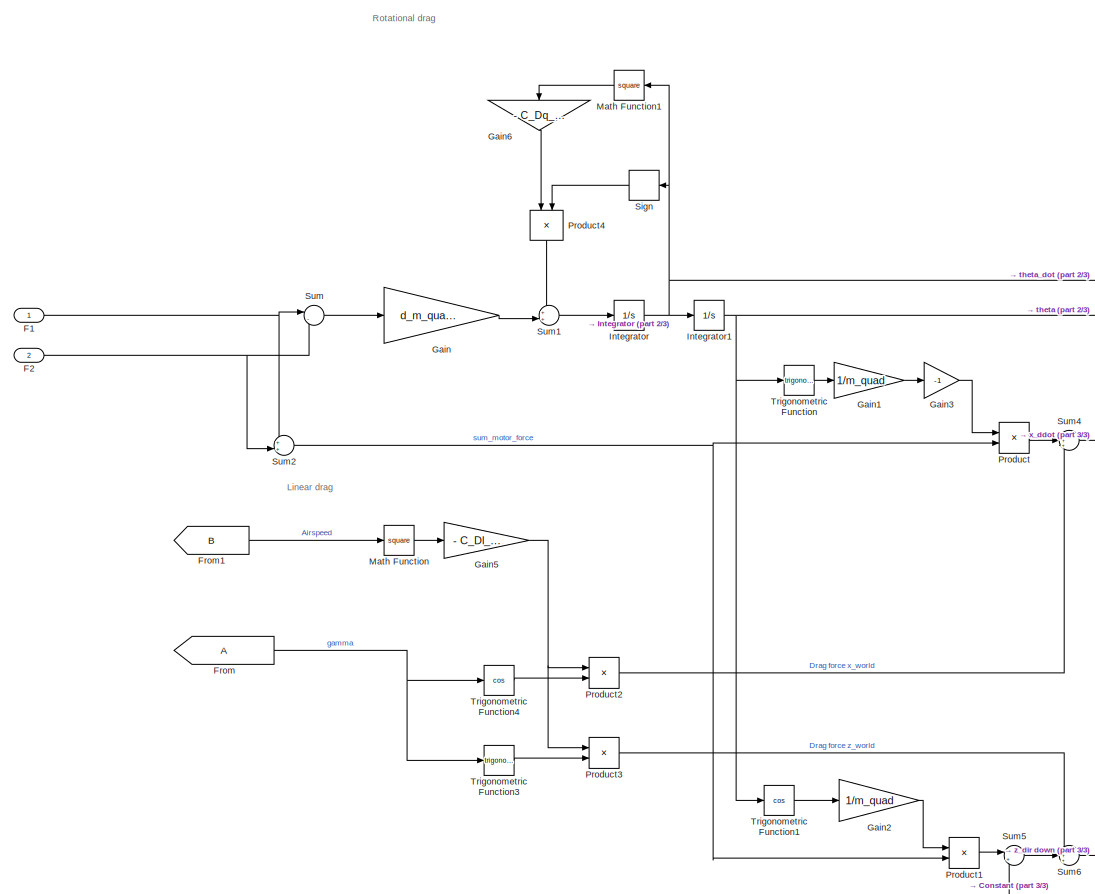
[diagram: Quadcopter/Quad dynamics - part 1/3, left side, full height]
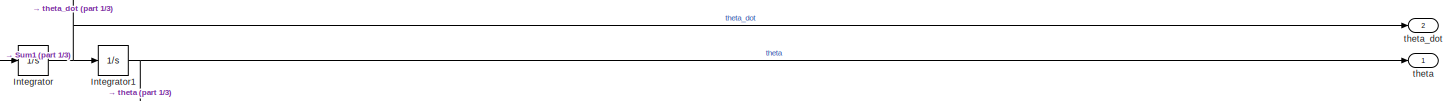
[diagram: Quadcopter/Quad dynamics - part 2/3, top center region]
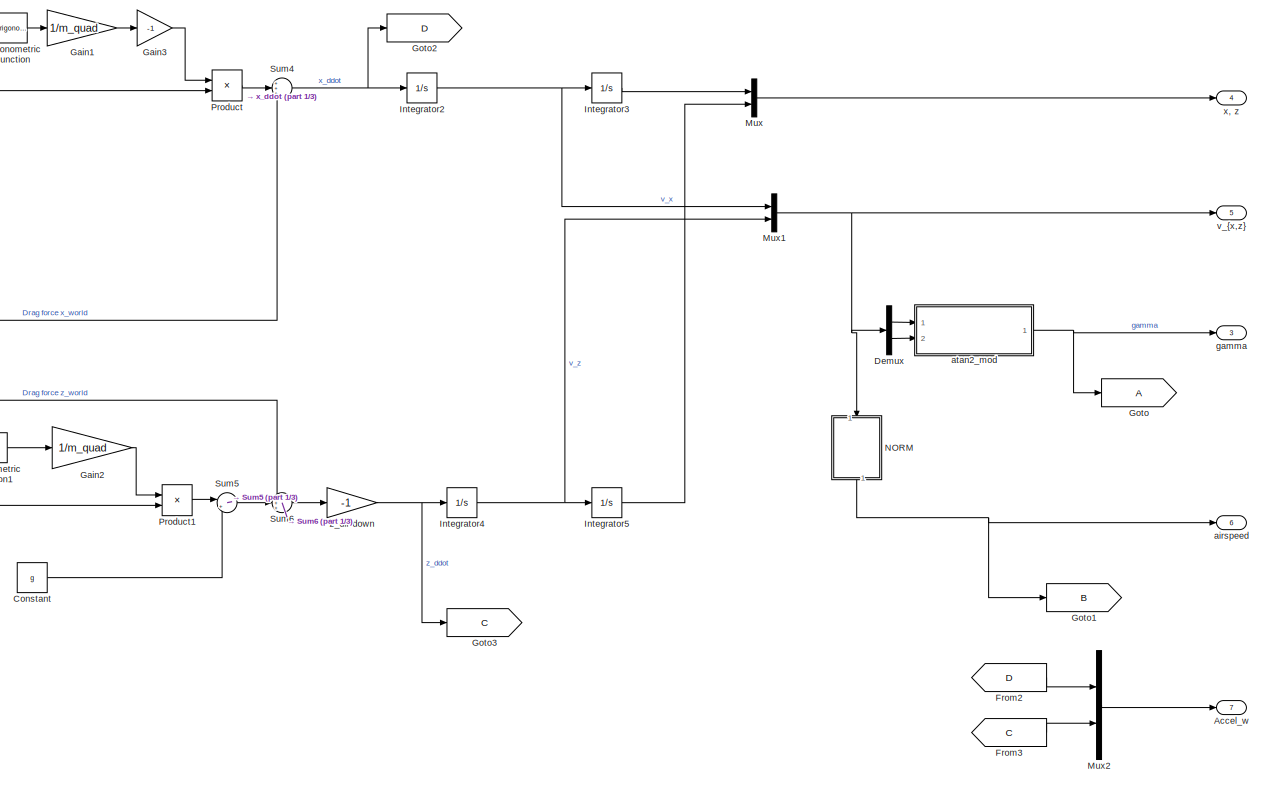
[diagram: Quadcopter/Quad dynamics - part 3/3, middle right region]
BLOCK [SubSystem] Quadcopter/Quad dynamics
  Ports = [2, 7]
  RequestExecContextInheritance = off
  Variant = off
BLOCK [Outport] Quadcopter/Quad dynamics/Accel_w
  IconDisplay = Port number
  Port = 7
BLOCK [Constant] Quadcopter/Quad dynamics/Constant
  Value = g
BLOCK [Demux] Quadcopter/Quad dynamics/Demux
  DisplayOption = bar
  Outputs = 2
  Ports = [1, 2]
BLOCK [Inport] Quadcopter/Quad dynamics/F1
  IconDisplay = Port number
BLOCK [Inport] Quadcopter/Quad dynamics/F2
  IconDisplay = Port number
  Port = 2
BLOCK [From] Quadcopter/Quad dynamics/From
  IconDisplay = Signal name
BLOCK [From] Quadcopter/Quad dynamics/From1
  GotoTag = B
  IconDisplay = Signal name
BLOCK [From] Quadcopter/Quad dynamics/From2
  GotoTag = D
  IconDisplay = Signal name
BLOCK [From] Quadcopter/Quad dynamics/From3
  GotoTag = C
  IconDisplay = Signal name
BLOCK [Gain] Quadcopter/Quad dynamics/Gain
  Gain = d_m_quad/J_quad
  OutDataTypeStr = Inherit: Inherit via internal rule
  ParamDataTypeStr = Inherit: Inherit via internal rule
  SaturateOnIntegerOverflow = off
BLOCK [Gain] Quadcopter/Quad dynamics/Gain1
  Gain = 1/m_quad
  OutDataTypeStr = Inherit: Inherit via internal rule
  ParamDataTypeStr = Inherit: Inherit via internal rule
  SaturateOnIntegerOverflow = off
BLOCK [Gain] Quadcopter/Quad dynamics/Gain2
  Gain = 1/m_quad
  OutDataTypeStr = Inherit: Inherit via internal rule
  ParamDataTypeStr = Inherit: Inherit via internal rule
  SaturateOnIntegerOverflow = off
BLOCK [Gain] Quadcopter/Quad dynamics/Gain3
  Gain = -1
  OutDataTypeStr = Inherit: Inherit via internal rule
  ParamDataTypeStr = Inherit: Inherit via internal rule
  SaturateOnIntegerOverflow = off
BLOCK [Gain] Quadcopter/Quad dynamics/Gain5
  Gain = - C_Dl_quad
  OutDataTypeStr = Inherit: Inherit via internal rule
  ParamDataTypeStr = Inherit: Inherit via internal rule
  SaturateOnIntegerOverflow = off
BLOCK [Gain] Quadcopter/Quad dynamics/Gain6
  Gain = - C_Dq_quad
  OutDataTypeStr = Inherit: Inherit via internal rule
  ParamDataTypeStr = Inherit: Inherit via internal rule
  SaturateOnIntegerOverflow = off
BLOCK [Goto] Quadcopter/Quad dynamics/Goto
  IconDisplay = Signal name
BLOCK [Goto] Quadcopter/Quad dynamics/Goto1
  GotoTag = B
  IconDisplay = Signal name
BLOCK [Goto] Quadcopter/Quad dynamics/Goto2
  GotoTag = D
  IconDisplay = Signal name
BLOCK [Goto] Quadcopter/Quad dynamics/Goto3
  GotoTag = C
  IconDisplay = Signal name
BLOCK [Integrator] Quadcopter/Quad dynamics/Integrator
  Ports = [1, 1]
BLOCK [Integrator] Quadcopter/Quad dynamics/Integrator1
  InitialCondition = quad_init_theta
  Ports = [1, 1]
BLOCK [Integrator] Quadcopter/Quad dynamics/Integrator2
  InitialCondition = quad_init_vx
  Ports = [1, 1]
BLOCK [Integrator] Quadcopter/Quad dynamics/Integrator3
  InitialCondition = quad_init_x
  Ports = [1, 1]
BLOCK [Integrator] Quadcopter/Quad dynamics/Integrator4
  InitialCondition = quad_init_vz
  Ports = [1, 1]
BLOCK [Integrator] Quadcopter/Quad dynamics/Integrator5
  InitialCondition = quad_init_z
  Ports = [1, 1]
BLOCK [Math] Quadcopter/Quad dynamics/Math Function
  Operator = square
  Ports = [1, 1]
BLOCK [Math] Quadcopter/Quad dynamics/Math Function1
  Operator = square
  Ports = [1, 1]
BLOCK [Mux] Quadcopter/Quad dynamics/Mux
  DisplayOption = bar
  Inputs = 2
  Ports = [2, 1]
BLOCK [Mux] Quadcopter/Quad dynamics/Mux1
  DisplayOption = bar
  Inputs = 2
  Ports = [2, 1]
BLOCK [Mux] Quadcopter/Quad dynamics/Mux2
  DisplayOption = bar
  Inputs = 2
  Ports = [2, 1]
BLOCK [SubSystem] Quadcopter/Quad dynamics/NORM
  Ports = [1, 1]
  RequestExecContextInheritance = off
  Variant = off
BLOCK [Inport] Quadcopter/Quad dynamics/NORM/In1
  IconDisplay = Port number
BLOCK [Outport] Quadcopter/Quad dynamics/NORM/Out1
  IconDisplay = Port number
BLOCK [SubSystem] Quadcopter/Quad dynamics/NORM/norm
  ErrorFcn = Stateflow.Translate.translate
  PermitHierarchicalResolution = ExplicitOnly
  Ports = [1, 1]
  RequestExecContextInheritance = off
  SFBlockType = MATLAB Function
  TreatAsAtomicUnit = on
  Variant = off
BLOCK [Demux] Quadcopter/Quad dynamics/NORM/norm/ Demux 
  Outputs = 1
  Ports = [1, 1]
BLOCK [S-Function] Quadcopter/Quad dynamics/NORM/norm/ SFunction 
  EnableBusSupport = on
  FunctionName = sf_sfun
  PortCounts = [1 2]
  Ports = [1, 2]
  SFcnIsStateOwnerBlock = off
  SFunctionDeploymentMode = off
  Tag = Stateflow S-Function Parabolic_alpha_sim 4
BLOCK [Terminator] Quadcopter/Quad dynamics/NORM/norm/ Terminator 
BLOCK [Outport] Quadcopter/Quad dynamics/NORM/norm/V_a
  IconDisplay = Port number
BLOCK [Inport] Quadcopter/Quad dynamics/NORM/norm/velocity
  IconDisplay = Port number
BLOCK [Product] Quadcopter/Quad dynamics/Product
  InputSameDT = off
  OutDataTypeStr = Inherit: Inherit via internal rule
  Ports = [2, 1]
  RndMeth = Floor
  SaturateOnIntegerOverflow = off
BLOCK [Product] Quadcopter/Quad dynamics/Product1
  InputSameDT = off
  OutDataTypeStr = Inherit: Inherit via internal rule
  Ports = [2, 1]
  RndMeth = Floor
  SaturateOnIntegerOverflow = off
BLOCK [Product] Quadcopter/Quad dynamics/Product2
  InputSameDT = off
  OutDataTypeStr = Inherit: Inherit via internal rule
  Ports = [2, 1]
  RndMeth = Floor
  SaturateOnIntegerOverflow = off
BLOCK [Product] Quadcopter/Quad dynamics/Product3
  InputSameDT = off
  OutDataTypeStr = Inherit: Inherit via internal rule
  Ports = [2, 1]
  RndMeth = Floor
  SaturateOnIntegerOverflow = off
BLOCK [Product] Quadcopter/Quad dynamics/Product4
  InputSameDT = off
  OutDataTypeStr = Inherit: Inherit via internal rule
  Ports = [2, 1]
  RndMeth = Floor
  SaturateOnIntegerOverflow = off
BLOCK [Signum] Quadcopter/Quad dynamics/Sign
BLOCK [Sum] Quadcopter/Quad dynamics/Sum
  IconShape = round
  InputSameDT = off
  Inputs = |-+
  OutDataTypeStr = Inherit: Inherit via internal rule
  Ports = [2, 1]
  SaturateOnIntegerOverflow = off
BLOCK [Sum] Quadcopter/Quad dynamics/Sum1
  IconShape = round
  InputSameDT = off
  Inputs = ++|
  OutDataTypeStr = Inherit: Inherit via internal rule
  Ports = [2, 1]
  SaturateOnIntegerOverflow = off
BLOCK [Sum] Quadcopter/Quad dynamics/Sum2
  IconShape = round
  InputSameDT = off
  Inputs = ++|
  OutDataTypeStr = Inherit: Inherit via internal rule
  Ports = [2, 1]
  SaturateOnIntegerOverflow = off
BLOCK [Sum] Quadcopter/Quad dynamics/Sum4
  IconShape = round
  InputSameDT = off
  Inputs = +++
  OutDataTypeStr = Inherit: Inherit via internal rule
  Ports = [3, 1]
  SaturateOnIntegerOverflow = off
BLOCK [Sum] Quadcopter/Quad dynamics/Sum5
  IconShape = round
  InputSameDT = off
  Inputs = |+-
  OutDataTypeStr = Inherit: Inherit via internal rule
  Ports = [2, 1]
  SaturateOnIntegerOverflow = off
BLOCK [Sum] Quadcopter/Quad dynamics/Sum6
  IconShape = round
  InputSameDT = off
  Inputs = +++
  OutDataTypeStr = Inherit: Inherit via internal rule
  Ports = [3, 1]
  SaturateOnIntegerOverflow = off
BLOCK [Trigonometry] Quadcopter/Quad dynamics/Trigonometric Function
  Ports = [1, 1]
BLOCK [Trigonometry] Quadcopter/Quad dynamics/Trigonometric Function1
  Operator = cos
  Ports = [1, 1]
BLOCK [Trigonometry] Quadcopter/Quad dynamics/Trigonometric Function3
  Ports = [1, 1]
BLOCK [Trigonometry] Quadcopter/Quad dynamics/Trigonometric Function4
  Operator = cos
  Ports = [1, 1]
BLOCK [Outport] Quadcopter/Quad dynamics/airspeed
  IconDisplay = Port number
  Port = 6
BLOCK [SubSystem] Quadcopter/Quad dynamics/atan2_mod
  ErrorFcn = Stateflow.Translate.translate
  PermitHierarchicalResolution = ExplicitOnly
  Ports = [2, 1]
  RequestExecContextInheritance = off
  SFBlockType = MATLAB Function
  TreatAsAtomicUnit = on
  Variant = off
BLOCK [Demux] Quadcopter/Quad dynamics/atan2_mod/ Demux 
  Outputs = 1
  Ports = [1, 1]
BLOCK [S-Function] Quadcopter/Quad dynamics/atan2_mod/ SFunction 
  EnableBusSupport = on
  FunctionName = sf_sfun
  PortCounts = [2 2]
  Ports = [2, 2]
  SFcnIsStateOwnerBlock = off
  SFunctionDeploymentMode = off
  Tag = Stateflow S-Function Parabolic_alpha_sim 5
BLOCK [Terminator] Quadcopter/Quad dynamics/atan2_mod/ Terminator 
BLOCK [Outport] Quadcopter/Quad dynamics/atan2_mod/gamma
  IconDisplay = Port number
BLOCK [Inport] Quadcopter/Quad dynamics/atan2_mod/v_x
  IconDisplay = Port number
BLOCK [Inport] Quadcopter/Quad dynamics/atan2_mod/v_z
  IconDisplay = Port number
  Port = 2
BLOCK [Outport] Quadcopter/Quad dynamics/gamma
  IconDisplay = Port number
  Port = 3
BLOCK [Outport] Quadcopter/Quad dynamics/theta
  IconDisplay = Port number
BLOCK [Outport] Quadcopter/Quad dynamics/theta_dot
  IconDisplay = Port number
  Port = 2
BLOCK [Outport] Quadcopter/Quad dynamics/v_{x,z}
  IconDisplay = Port number
  Port = 5
BLOCK [Outport] Quadcopter/Quad dynamics/x, z
  IconDisplay = Port number
  Port = 4
BLOCK [Gain] Quadcopter/Quad dynamics/z_dir down
  Gain = -1
  OutDataTypeStr = Inherit: Inherit via internal rule
  ParamDataTypeStr = Inherit: Inherit via internal rule
  SaturateOnIntegerOverflow = off
BLOCK [Reference] Quadcopter/Radians to Degrees  REF=simulink_extras/Transformations/Radians
to Degrees
  Ports = [1, 1]
  SourceBlock = simulink_extras/Transformations/Radians\nto Degrees
  SourceProductBaseCode = SL
  SourceProductName = Simulink
  SourceType = RadiansToDegrees
BLOCK [Reference] Quadcopter/Radians to Degrees1  REF=simulink_extras/Transformations/Radians
to Degrees
  Ports = [1, 1]
  SourceBlock = simulink_extras/Transformations/Radians\nto Degrees
  SourceProductBaseCode = SL
  SourceProductName = Simulink
  SourceType = RadiansToDegrees
BLOCK [Saturate] Quadcopter/Saturation
  InputPortMap = u0
  LowerLimit = -max_sum_force/2*0
  Ports = [1, 1]
  UpperLimit = max_sum_force/2
BLOCK [Saturate] Quadcopter/Saturation1
  InputPortMap = u0
  LowerLimit = -max_sum_force/2*0
  Ports = [1, 1]
  UpperLimit = max_sum_force/2
BLOCK [Scope] Quadcopter/f_sum
  NumInputPorts = 1
  Ports = [1]
  ScopeSpecificationString = Simulink.scopes.TimeScopeBlockCfg('CurrentConfiguration', extmgr.ConfigurationSet(extmgr.Configuration('Core','General UI',true),extmgr.Configuration('Core','Source UI',true),extmgr.Configuration('Sources','WiredSimulink',true,'DataLoggingSaveFormat','Array','DataLoggingDecimation','1','DataLoggingDecimateData',true,'DataLoggingVariableName','ScopeData5'),extmgr.Configuration('Visuals','Time Domai...<+1733ch>
BLOCK [Scope] Quadcopter/pos 
  NumInputPorts = 1
  Ports = [1]
  ScopeSpecificationString = Simulink.scopes.TimeScopeBlockCfg('CurrentConfiguration', extmgr.ConfigurationSet(extmgr.Configuration('Core','General UI',true),extmgr.Configuration('Core','Source UI',true),extmgr.Configuration('Sources','WiredSimulink',true,'DataLoggingSaveFormat','Array','DataLoggingDecimation','1','DataLoggingDecimateData',true,'DataLoggingVariableName','ScopeData1'),extmgr.Configuration('Visuals','Time Domai...<+1720ch>
BLOCK [Outport] Quadcopter/quad states
  IconDisplay = Port number
BLOCK [Scope] Quadcopter/theta
  NumInputPorts = 1
  Ports = [1]
  ScopeSpecificationString = Simulink.scopes.TimeScopeBlockCfg('CurrentConfiguration', extmgr.ConfigurationSet(extmgr.Configuration('Core','General UI',true),extmgr.Configuration('Core','Source UI',true),extmgr.Configuration('Sources','WiredSimulink',true,'DataLoggingSaveFormat','Array','DataLoggingDecimation','1','DataLoggingDecimateData',true),extmgr.Configuration('Visuals','Time Domain',true,'SerializedDisplays',{struct('M...<+1648ch>
BLOCK [SubSystem] Quadcopter/theta -> v_zw controll
  Ports = [3, 1]
  RequestExecContextInheritance = off
  Variant = off
BLOCK [Inport] Quadcopter/theta -> v_zw controll/A_xw
  IconDisplay = Port number
  Port = 3
BLOCK [Ground] Quadcopter/theta -> v_zw controll/Ground
BLOCK [Integrator] Quadcopter/theta -> v_zw controll/Integrator
  LimitOutput = on
  LowerSaturationLimit = -80*deg2rad
  Ports = [1, 1]
  UpperSaturationLimit = 80*deg2rad
BLOCK [Saturate] Quadcopter/theta -> v_zw controll/Saturation
  InputPortMap = u0
  LowerLimit = -quad_max_inclination
  Ports = [1, 1]
  UpperLimit = quad_max_inclination
BLOCK [Sum] Quadcopter/theta -> v_zw controll/Sum
  IconShape = round
  InputSameDT = off
  Inputs = |+-
  OutDataTypeStr = Inherit: Inherit via internal rule
  Ports = [2, 1]
  SaturateOnIntegerOverflow = off
BLOCK [Sum] Quadcopter/theta -> v_zw controll/Sum1
  IconShape = round
  InputSameDT = off
  Inputs = +++
  OutDataTypeStr = Inherit: Inherit via internal rule
  Ports = [3, 1]
  SaturateOnIntegerOverflow = off
BLOCK [Terminator] Quadcopter/theta -> v_zw controll/Terminator
BLOCK [Gain] Quadcopter/theta -> v_zw controll/ki
  Gain = -0.07
  OutDataTypeStr = Inherit: Inherit via internal rule
  ParamDataTypeStr = Inherit: Inherit via internal rule
  SaturateOnIntegerOverflow = off
BLOCK [Gain] Quadcopter/theta -> v_zw controll/kp
  Gain = -0.3
  OutDataTypeStr = Inherit: Inherit via internal rule
  ParamDataTypeStr = Inherit: Inherit via internal rule
  SaturateOnIntegerOverflow = off
BLOCK [Outport] Quadcopter/theta -> v_zw controll/theta_ref
  IconDisplay = Port number
BLOCK [Inport] Quadcopter/theta -> v_zw controll/v_xw
  IconDisplay = Port number
  Port = 2
BLOCK [Inport] Quadcopter/theta -> v_zw controll/v_xw_ref
  IconDisplay = Port number
BLOCK [Scope] Quadcopter/theta_comp
  NumInputPorts = 1
  Ports = [1]
  ScopeSpecificationString = Simulink.scopes.TimeScopeBlockCfg('CurrentConfiguration', extmgr.ConfigurationSet(extmgr.Configuration('Core','General UI',true),extmgr.Configuration('Core','Source UI',true),extmgr.Configuration('Sources','WiredSimulink',true,'DataLoggingSaveFormat','Array','DataLoggingDecimation','1','DataLoggingDecimateData',true,'DataLoggingVariableName','ScopeData2'),extmgr.Configuration('Visuals','Time Domai...<+1782ch>
BLOCK [Inport] Quadcopter/v_xw_ref
  IconDisplay = Port number
BLOCK [Inport] Quadcopter/v_zw_ref
  IconDisplay = Port number
  Port = 2
BLOCK [Scope] Quadcopter/vx
  NumInputPorts = 1
  Ports = [1]
  ScopeSpecificationString = Simulink.scopes.TimeScopeBlockCfg('CurrentConfiguration', extmgr.ConfigurationSet(extmgr.Configuration('Core','General UI',true),extmgr.Configuration('Core','Source UI',true),extmgr.Configuration('Sources','WiredSimulink',true,'DataLoggingSaveFormat','Array','DataLoggingDecimation','1','DataLoggingDecimateData',true,'DataLoggingVariableName','ScopeData4'),extmgr.Configuration('Visuals','Time Domai...<+1708ch>
BLOCK [Scope] Quadcopter/vz 
  NumInputPorts = 1
  Ports = [1]
  ScopeSpecificationString = Simulink.scopes.TimeScopeBlockCfg('CurrentConfiguration', extmgr.ConfigurationSet(extmgr.Configuration('Core','General UI',true),extmgr.Configuration('Core','Source UI',true),extmgr.Configuration('Sources','WiredSimulink',true,'DataLoggingSaveFormat','Array','DataLoggingDecimation','1','DataLoggingDecimateData',true,'DataLoggingVariableName','ScopeData2'),extmgr.Configuration('Visuals','Time Domai...<+1706ch>
BLOCK [ToWorkspace] To Workspace1
  FixptAsFi = on
  MaxDataPoints = inf
  Ports = [1]
  SampleTime = -1
  Save2DSignal = 3-D array (concatenate along third dimension)
  SaveFormat = Timeseries
  VariableName = pos_quad
BLOCK [ToWorkspace] To Workspace2
  FixptAsFi = on
  MaxDataPoints = inf
  Ports = [1]
  SampleTime = -1
  Save2DSignal = 3-D array (concatenate along third dimension)
  SaveFormat = Timeseries
  VariableName = target
BLOCK [SubSystem] quad target
  Ports = [1, 2]
  RequestExecContextInheritance = off
  Variant = off
BLOCK [SubSystem] quad target/BODY to NED
  Ports = [3, 2]
  RequestExecContextInheritance = off
  Variant = off
BLOCK [Product] quad target/BODY to NED/Product
  InputSameDT = off
  OutDataTypeStr = Inherit: Inherit via internal rule
  Ports = [2, 1]
  RndMeth = Floor
  SaturateOnIntegerOverflow = off
BLOCK [Product] quad target/BODY to NED/Product1
  InputSameDT = off
  OutDataTypeStr = Inherit: Inherit via internal rule
  Ports = [2, 1]
  RndMeth = Floor
  SaturateOnIntegerOverflow = off
BLOCK [Product] quad target/BODY to NED/Product2
  InputSameDT = off
  OutDataTypeStr = Inherit: Inherit via internal rule
  Ports = [2, 1]
  RndMeth = Floor
  SaturateOnIntegerOverflow = off
BLOCK [Product] quad target/BODY to NED/Product3
  InputSameDT = off
  OutDataTypeStr = Inherit: Inherit via internal rule
  Ports = [2, 1]
  RndMeth = Floor
  SaturateOnIntegerOverflow = off
BLOCK [Sum] quad target/BODY to NED/Sum
  IconShape = round
  InputSameDT = off
  Inputs = |++
  OutDataTypeStr = Inherit: Inherit via internal rule
  Ports = [2, 1]
  SaturateOnIntegerOverflow = off
BLOCK [Sum] quad target/BODY to NED/Sum1
  IconShape = round
  InputSameDT = off
  Inputs = |+-
  OutDataTypeStr = Inherit: Inherit via internal rule
  Ports = [2, 1]
  SaturateOnIntegerOverflow = off
BLOCK [Trigonometry] quad target/BODY to NED/cos 
  Operator = cos
  Ports = [1, 1]
BLOCK [Trigonometry] quad target/BODY to NED/sin
  Ports = [1, 1]
BLOCK [Inport] quad target/BODY to NED/theta
  IconDisplay = Port number
  Port = 3
BLOCK [Inport] quad target/BODY to NED/xb
  IconDisplay = Port number
BLOCK [Outport] quad target/BODY to NED/xw
  IconDisplay = Port number
BLOCK [Inport] quad target/BODY to NED/zb
  IconDisplay = Port number
  Port = 2
BLOCK [Outport] quad target/BODY to NED/zw
  IconDisplay = Port number
  Port = 2
BLOCK [BusSelector] quad target/Bus Selector
  OutputAsBus = off
  OutputSignals = Theta,V_bdy,pos
  Ports = [1, 3]
BLOCK [Demux] quad target/Demux
  DisplayOption = bar
  Outputs = 2
  Ports = [1, 2]
BLOCK [Demux] quad target/Demux1
  DisplayOption = bar
  Outputs = 2
  Ports = [1, 2]
BLOCK [Mux] quad target/Mux
  DisplayOption = bar
  Inputs = 2
  Ports = [2, 1]
BLOCK [Mux] quad target/Mux1
  DisplayOption = bar
  Inputs = 2
  Ports = [2, 1]
BLOCK [Inport] quad target/Plane States
  IconDisplay = Port number
BLOCK [Saturate] quad target/Saturation
  InputPortMap = u0
  LowerLimit = 0
  Ports = [1, 1]
  UpperLimit = inf
BLOCK [Scope] quad target/Scope
  NumInputPorts = 1
  Ports = [1]
  ScopeSpecificationString = Simulink.scopes.TimeScopeBlockCfg('CurrentConfiguration', extmgr.ConfigurationSet(extmgr.Configuration('Core','General UI',true),extmgr.Configuration('Core','Source UI',true),extmgr.Configuration('Sources','WiredSimulink',true,'DataLoggingVariableName','ScopeData2'),extmgr.Configuration('Visuals','Time Domain',true,'SerializedDisplays',{struct('MinYLimReal','6.12774','MaxYLimReal','9.40782','YLabe...<+1400ch>
BLOCK [Scope] quad target/Scope1
  NumInputPorts = 1
  Ports = [1]
  ScopeSpecificationString = Simulink.scopes.TimeScopeBlockCfg('CurrentConfiguration', extmgr.ConfigurationSet(extmgr.Configuration('Core','General UI',true),extmgr.Configuration('Core','Source UI',true),extmgr.Configuration('Sources','WiredSimulink',true,'DataLoggingVariableName','ScopeData3'),extmgr.Configuration('Visuals','Time Domain',true,'SerializedDisplays',{struct('MinYLimReal','-2.33568','MaxYLimReal','21.02108','YLa...<+1427ch>
BLOCK [Scope] quad target/Scope2
  NumInputPorts = 1
  Ports = [1]
  ScopeSpecificationString = Simulink.scopes.TimeScopeBlockCfg('CurrentConfiguration', extmgr.ConfigurationSet(extmgr.Configuration('Core','General UI',true),extmgr.Configuration('Core','Source UI',true),extmgr.Configuration('Sources','WiredSimulink',true,'DataLoggingVariableName','ScopeData9'),extmgr.Configuration('Visuals','Time Domain',true,'SerializedDisplays',{struct('MinYLimReal','-35.30755','MaxYLimReal','30.87654','YL...<+1432ch>
BLOCK [Sum] quad target/Sum
  IconShape = round
  InputSameDT = off
  Inputs = -+|
  OutDataTypeStr = Inherit: Inherit via internal rule
  Ports = [2, 1]
  SaturateOnIntegerOverflow = off
BLOCK [SubSystem] quad target/peak estimate
  ErrorFcn = Stateflow.Translate.translate
  PermitHierarchicalResolution = ExplicitOnly
  Ports = [1, 1]
  RequestExecContextInheritance = off
  SFBlockType = MATLAB Function
  TreatAsAtomicUnit = on
  Variant = off
BLOCK [Demux] quad target/peak estimate/ Demux 
  Outputs = 1
  Ports = [1, 1]
BLOCK [S-Function] quad target/peak estimate/ SFunction 
  EnableBusSupport = on
  FunctionName = sf_sfun
  PortCounts = [1 2]
  Ports = [1, 2]
  SFcnIsStateOwnerBlock = off
  SFunctionDeploymentMode = off
  Tag = Stateflow S-Function Parabolic_alpha_sim 3
BLOCK [Terminator] quad target/peak estimate/ Terminator 
BLOCK [Outport] quad target/peak estimate/dist_z
  IconDisplay = Port number
BLOCK [Inport] quad target/peak estimate/vzw
  IconDisplay = Port number
BLOCK [Outport] quad target/target_V
  IconDisplay = Port number
  Port = 2
BLOCK [Outport] quad target/target_pos
  IconDisplay = Port number
ANNOTATION Fixed wing: Scopes
ANNOTATION Fixed wing/Plane dynamics: U = body velocity x w = body velocity z
ANNOTATION Fixed wing/Plane dynamics/Aerodynamic coefficients: Drag
ANNOTATION Fixed wing/Plane dynamics/Aerodynamic coefficients: Lift
ANNOTATION Fixed wing/Plane dynamics/Aerodynamic coefficients: moment
ANNOTATION Quadcopter/Quad dynamics: Linear drag
ANNOTATION Quadcopter/Quad dynamics: Rotational drag
NET Bus Selector:1 -> Constant bearing quidance:1, To Workspace1:1
LINE Constant bearing quidance/CBG:1 -> Constant bearing quidance/V_ref:1
LINE Constant bearing quidance/Target V:1 -> Constant bearing quidance/CBG:3
LINE Constant bearing quidance/Target pos:1 -> Constant bearing quidance/CBG:2
LINE Constant bearing quidance/self pos:1 -> Constant bearing quidance/CBG:1
LINE Constant bearing quidance:1 -> Demux:1
LINE Demux:1 -> Quadcopter:1
LINE Demux:2 -> Quadcopter:2
LINE Fixed wing/Airspeed:1 -> Fixed wing/V_a:1
LINE Fixed wing/BODY to NED/Product1:1 -> Fixed wing/BODY to NED/Sum:2
LINE Fixed wing/BODY to NED/Product2:1 -> Fixed wing/BODY to NED/Sum1:2
LINE Fixed wing/BODY to NED/Product3:1 -> Fixed wing/BODY to NED/Sum1:1
LINE Fixed wing/BODY to NED/Product:1 -> Fixed wing/BODY to NED/Sum:1
LINE Fixed wing/BODY to NED/Sum1:1 -> Fixed wing/BODY to NED/zw:1
LINE Fixed wing/BODY to NED/Sum:1 -> Fixed wing/BODY to NED/xw:1
NET Fixed wing/BODY to NED/cos :1 -> Fixed wing/BODY to NED/Product3:2, Fixed wing/BODY to NED/Product:2
NET Fixed wing/BODY to NED/sin:1 -> Fixed wing/BODY to NED/Product1:2, Fixed wing/BODY to NED/Product2:2
NET Fixed wing/BODY to NED/theta:1 -> Fixed wing/BODY to NED/cos :1, Fixed wing/BODY to NED/sin:1
NET Fixed wing/BODY to NED/xb:1 -> Fixed wing/BODY to NED/Product2:1, Fixed wing/BODY to NED/Product:1
NET Fixed wing/BODY to NED/zb:1 -> Fixed wing/BODY to NED/Product1:1, Fixed wing/BODY to NED/Product3:1
LINE Fixed wing/BODY to NED:1 -> Fixed wing/G_world:1
LINE Fixed wing/BODY to NED:2 -> Fixed wing/G_world:2
NET Fixed wing/Bus Creator:1 -> Fixed wing/Bus Selector:1, Fixed wing/Plane state bus:1, Fixed wing/elev->alpha; prop->U:1
LINE Fixed wing/Bus Selector:1 -> Fixed wing/Radians to Degrees2:1
NET Fixed wing/Bus Selector:2 -> Fixed wing/BODY to NED:3, Fixed wing/Radians to Degrees:1, Fixed wing/Sink:1
LINE Fixed wing/Bus Selector:3 -> Fixed wing/t___:1
NET Fixed wing/Bus Selector:4 -> Fixed wing/To Workspace:1, Fixed wing/pos:1
NET Fixed wing/Bus Selector:5 -> Fixed wing/Sink:2, Fixed wing/dot:1, Fixed wing/velocity:1
LINE Fixed wing/Bus Selector:6 -> Fixed wing/Gain2:1
NET Fixed wing/Demux:1 -> Fixed wing/BODY to NED:1, Fixed wing/Gs:1
NET Fixed wing/Demux:2 -> Fixed wing/BODY to NED:2, Fixed wing/Gs:2
LINE Fixed wing/Gain2:1 -> Fixed wing/Demux:1
LINE Fixed wing/Plane dynamics/3DOF (Body Axes):1 -> Fixed wing/Plane dynamics/Theta:1
NET Fixed wing/Plane dynamics/3DOF (Body Axes):2 -> Fixed wing/Plane dynamics/Aerodynamic coefficients:3, Fixed wing/Plane dynamics/theta_dot:1
LINE Fixed wing/Plane dynamics/3DOF (Body Axes):3 -> Fixed wing/Plane dynamics/Terminator4:1
LINE Fixed wing/Plane dynamics/3DOF (Body Axes):4 -> Fixed wing/Plane dynamics/Position:1
NET Fixed wing/Plane dynamics/3DOF (Body Axes):5 -> Fixed wing/Plane dynamics/Demux2:1, Fixed wing/Plane dynamics/Incidence & Airspeed:1, Fixed wing/Plane dynamics/Velocity_bdy:1
LINE Fixed wing/Plane dynamics/3DOF (Body Axes):6 -> Fixed wing/Plane dynamics/Axb,Azb:1
LINE Fixed wing/Plane dynamics/Aerodynamic Forces and Moments :1 -> Fixed wing/Plane dynamics/Demux:1
LINE Fixed wing/Plane dynamics/Aerodynamic Forces and Moments :2 -> Fixed wing/Plane dynamics/Demux1:1
NET Fixed wing/Plane dynamics/Aerodynamic coefficients/Alpha:1 -> Fixed wing/Plane dynamics/Aerodynamic coefficients/C_D(alpha):1, Fixed wing/Plane dynamics/Aerodynamic coefficients/C_L(alpha):1, Fixed wing/Plane dynamics/Aerodynamic coefficients/Gain6:1
LINE Fixed wing/Plane dynamics/Aerodynamic coefficients/C_D(alpha):1 -> Fixed wing/Plane dynamics/Aerodynamic coefficients/Sum1:2
LINE Fixed wing/Plane dynamics/Aerodynamic coefficients/C_L(alpha):1 -> Fixed wing/Plane dynamics/Aerodynamic coefficients/Sum:2
LINE Fixed wing/Plane dynamics/Aerodynamic coefficients/Constant:1 -> Fixed wing/Plane dynamics/Aerodynamic coefficients/Sum3:2
LINE Fixed wing/Plane dynamics/Aerodynamic coefficients/Gain10:1 -> Fixed wing/Plane dynamics/Aerodynamic coefficients/Sum2:1
LINE Fixed wing/Plane dynamics/Aerodynamic coefficients/Gain1:1 -> Fixed wing/Plane dynamics/Aerodynamic coefficients/Product:2
LINE Fixed wing/Plane dynamics/Aerodynamic coefficients/Gain2:1 -> Fixed wing/Plane dynamics/Aerodynamic coefficients/Sum1:3
LINE Fixed wing/Plane dynamics/Aerodynamic coefficients/Gain3:1 -> Fixed wing/Plane dynamics/Aerodynamic coefficients/Product1:2
LINE Fixed wing/Plane dynamics/Aerodynamic coefficients/Gain4:1 -> Fixed wing/Plane dynamics/Aerodynamic coefficients/Mux:5
LINE Fixed wing/Plane dynamics/Aerodynamic coefficients/Gain5:1 -> Fixed wing/Plane dynamics/Aerodynamic coefficients/Gain1:1
LINE Fixed wing/Plane dynamics/Aerodynamic coefficients/Gain6:1 -> Fixed wing/Plane dynamics/Aerodynamic coefficients/Sum3:1
LINE Fixed wing/Plane dynamics/Aerodynamic coefficients/Gain7:1 -> Fixed wing/Plane dynamics/Aerodynamic coefficients/Gain3:1
LINE Fixed wing/Plane dynamics/Aerodynamic coefficients/Gain8:1 -> Fixed wing/Plane dynamics/Aerodynamic coefficients/Gain9:1
LINE Fixed wing/Plane dynamics/Aerodynamic coefficients/Gain9:1 -> Fixed wing/Plane dynamics/Aerodynamic coefficients/Product2:2
LINE Fixed wing/Plane dynamics/Aerodynamic coefficients/Gain:1 -> Fixed wing/Plane dynamics/Aerodynamic coefficients/Sum:3
LINE Fixed wing/Plane dynamics/Aerodynamic coefficients/Ground1:1 -> Fixed wing/Plane dynamics/Aerodynamic coefficients/Mux:4
LINE Fixed wing/Plane dynamics/Aerodynamic coefficients/Ground2:1 -> Fixed wing/Plane dynamics/Aerodynamic coefficients/Mux:6
LINE Fixed wing/Plane dynamics/Aerodynamic coefficients/Ground:1 -> Fixed wing/Plane dynamics/Aerodynamic coefficients/Mux:2
LINE Fixed wing/Plane dynamics/Aerodynamic coefficients/Mux:1 -> Fixed wing/Plane dynamics/Aerodynamic coefficients/Coeff:1
LINE Fixed wing/Plane dynamics/Aerodynamic coefficients/Product1:1 -> Fixed wing/Plane dynamics/Aerodynamic coefficients/Sum1:1
LINE Fixed wing/Plane dynamics/Aerodynamic coefficients/Product2:1 -> Fixed wing/Plane dynamics/Aerodynamic coefficients/Sum2:2
LINE Fixed wing/Plane dynamics/Aerodynamic coefficients/Product:1 -> Fixed wing/Plane dynamics/Aerodynamic coefficients/Sum:1
LINE Fixed wing/Plane dynamics/Aerodynamic coefficients/Sum1:1 -> Fixed wing/Plane dynamics/Aerodynamic coefficients/Mux:1
LINE Fixed wing/Plane dynamics/Aerodynamic coefficients/Sum2:1 -> Fixed wing/Plane dynamics/Aerodynamic coefficients/Gain4:1
LINE Fixed wing/Plane dynamics/Aerodynamic coefficients/Sum3:1 -> Fixed wing/Plane dynamics/Aerodynamic coefficients/Sum2:3
LINE Fixed wing/Plane dynamics/Aerodynamic coefficients/Sum:1 -> Fixed wing/Plane dynamics/Aerodynamic coefficients/Mux:3
NET Fixed wing/Plane dynamics/Aerodynamic coefficients/V_a:1 -> Fixed wing/Plane dynamics/Aerodynamic coefficients/Product1:1, Fixed wing/Plane dynamics/Aerodynamic coefficients/Product2:1, Fixed wing/Plane dynamics/Aerodynamic coefficients/Product:1
NET Fixed wing/Plane dynamics/Aerodynamic coefficients/elevator:1 -> Fixed wing/Plane dynamics/Aerodynamic coefficients/Gain10:1, Fixed wing/Plane dynamics/Aerodynamic coefficients/Gain2:1, Fixed wing/Plane dynamics/Aerodynamic coefficients/Gain:1
NET Fixed wing/Plane dynamics/Aerodynamic coefficients/q:1 -> Fixed wing/Plane dynamics/Aerodynamic coefficients/Gain5:1, Fixed wing/Plane dynamics/Aerodynamic coefficients/Gain7:1, Fixed wing/Plane dynamics/Aerodynamic coefficients/Gain8:1
LINE Fixed wing/Plane dynamics/Aerodynamic coefficients:1 -> Fixed wing/Plane dynamics/Aerodynamic Forces and Moments :1
LINE Fixed wing/Plane dynamics/CG:1 -> Fixed wing/Plane dynamics/Aerodynamic Forces and Moments :3
LINE Fixed wing/Plane dynamics/CP:1 -> Fixed wing/Plane dynamics/Aerodynamic Forces and Moments :4
LINE Fixed wing/Plane dynamics/Demux1:1 -> Fixed wing/Plane dynamics/Terminator1:1
LINE Fixed wing/Plane dynamics/Demux1:2 -> Fixed wing/Plane dynamics/3DOF (Body Axes):3
LINE Fixed wing/Plane dynamics/Demux1:3 -> Fixed wing/Plane dynamics/Terminator2:1
LINE Fixed wing/Plane dynamics/Demux2:1 -> Fixed wing/Plane dynamics/Mux:1
LINE Fixed wing/Plane dynamics/Demux2:2 -> Fixed wing/Plane dynamics/Mux:3
LINE Fixed wing/Plane dynamics/Demux:1 -> Fixed wing/Plane dynamics/Sum:2
LINE Fixed wing/Plane dynamics/Demux:2 -> Fixed wing/Plane dynamics/Terminator:1
LINE Fixed wing/Plane dynamics/Demux:3 -> Fixed wing/Plane dynamics/3DOF (Body Axes):2
LINE Fixed wing/Plane dynamics/Dynamic Pressure:1 -> Fixed wing/Plane dynamics/Aerodynamic Forces and Moments :2
LINE Fixed wing/Plane dynamics/Elevator [rad]:1 -> Fixed wing/Plane dynamics/elev dynamic:1
NET Fixed wing/Plane dynamics/Ground1:1 -> Fixed wing/Plane dynamics/Mux1:1, Fixed wing/Plane dynamics/Mux1:2
NET Fixed wing/Plane dynamics/Incidence & Airspeed:1 -> Fixed wing/Plane dynamics/Aerodynamic coefficients:1, Fixed wing/Plane dynamics/Alpha:1
NET Fixed wing/Plane dynamics/Incidence & Airspeed:2 -> Fixed wing/Plane dynamics/Aerodynamic coefficients:4, Fixed wing/Plane dynamics/Mux1:3
LINE Fixed wing/Plane dynamics/Mux1:1 -> Fixed wing/Plane dynamics/Dynamic Pressure:1
LINE Fixed wing/Plane dynamics/Mux:1 -> Fixed wing/Plane dynamics/Aerodynamic Forces and Moments :5
LINE Fixed wing/Plane dynamics/Radians to Degrees1:1 -> Fixed wing/Plane dynamics/elev:1
LINE Fixed wing/Plane dynamics/Sum:1 -> Fixed wing/Plane dynamics/3DOF (Body Axes):1
LINE Fixed wing/Plane dynamics/_:1 -> Fixed wing/Plane dynamics/Mux:2
LINE Fixed wing/Plane dynamics/elev dynamic/Command:1 -> Fixed wing/Plane dynamics/elev dynamic/Sum:1
LINE Fixed wing/Plane dynamics/elev dynamic/Gain:1 -> Fixed wing/Plane dynamics/elev dynamic/Integrator:1
NET Fixed wing/Plane dynamics/elev dynamic/Integrator:1 -> Fixed wing/Plane dynamics/elev dynamic/Elevator:1, Fixed wing/Plane dynamics/elev dynamic/Scope:1, Fixed wing/Plane dynamics/elev dynamic/Sum:2
LINE Fixed wing/Plane dynamics/elev dynamic/Sum:1 -> Fixed wing/Plane dynamics/elev dynamic/Gain:1
NET Fixed wing/Plane dynamics/elev dynamic:1 -> Fixed wing/Plane dynamics/Aerodynamic coefficients:2, Fixed wing/Plane dynamics/Radians to Degrees1:1
LINE Fixed wing/Plane dynamics/prop force:1 -> Fixed wing/Plane dynamics/Sum:1
LINE Fixed wing/Plane dynamics/rho_def:1 -> Fixed wing/Plane dynamics/Dynamic Pressure:2
LINE Fixed wing/Plane dynamics:1 -> Fixed wing/Bus Creator:1
LINE Fixed wing/Plane dynamics:2 -> Fixed wing/Bus Creator:2
LINE Fixed wing/Plane dynamics:3 -> Fixed wing/Bus Creator:3
LINE Fixed wing/Plane dynamics:4 -> Fixed wing/Bus Creator:4
LINE Fixed wing/Plane dynamics:5 -> Fixed wing/Bus Creator:5
LINE Fixed wing/Plane dynamics:6 -> Fixed wing/Bus Creator:6
LINE Fixed wing/Radians to Degrees1:1 -> Fixed wing/elev:1
LINE Fixed wing/Radians to Degrees2:1 -> Fixed wing/alpha:1
NET Fixed wing/Radians to Degrees:1 -> Fixed wing/To Workspace1:1, Fixed wing/theta:1
LINE Fixed wing/Sink/Demux:1 -> Fixed wing/Sink/Product1:2
LINE Fixed wing/Sink/Demux:2 -> Fixed wing/Sink/Product:1
LINE Fixed wing/Sink/Product1:1 -> Fixed wing/Sink/Sum:1
LINE Fixed wing/Sink/Product:1 -> Fixed wing/Sink/Sum:2
LINE Fixed wing/Sink/Sum:1 -> Fixed wing/Sink/sink:1
LINE Fixed wing/Sink/Trigonometric Function1:1 -> Fixed wing/Sink/Product1:1
LINE Fixed wing/Sink/Trigonometric Function:1 -> Fixed wing/Sink/Product:2
NET Fixed wing/Sink/theta:1 -> Fixed wing/Sink/Trigonometric Function1:1, Fixed wing/Sink/Trigonometric Function:1
LINE Fixed wing/Sink/v_bdy:1 -> Fixed wing/Sink/Demux:1
LINE Fixed wing/Sink:1 -> Fixed wing/sink:1
NET Fixed wing/U_ref:1 -> Fixed wing/Plane dynamics:2, Fixed wing/prop:1
LINE Fixed wing/dot:1 -> Fixed wing/Airspeed:1
LINE Fixed wing/elev->alpha; prop->U/BODY to NED/Product1:1 -> Fixed wing/elev->alpha; prop->U/BODY to NED/Sum:2
LINE Fixed wing/elev->alpha; prop->U/BODY to NED/Product2:1 -> Fixed wing/elev->alpha; prop->U/BODY to NED/Sum1:2
LINE Fixed wing/elev->alpha; prop->U/BODY to NED/Product3:1 -> Fixed wing/elev->alpha; prop->U/BODY to NED/Sum1:1
LINE Fixed wing/elev->alpha; prop->U/BODY to NED/Product:1 -> Fixed wing/elev->alpha; prop->U/BODY to NED/Sum:1
LINE Fixed wing/elev->alpha; prop->U/BODY to NED/Sum1:1 -> Fixed wing/elev->alpha; prop->U/BODY to NED/zw:1
LINE Fixed wing/elev->alpha; prop->U/BODY to NED/Sum:1 -> Fixed wing/elev->alpha; prop->U/BODY to NED/xw:1
NET Fixed wing/elev->alpha; prop->U/BODY to NED/cos :1 -> Fixed wing/elev->alpha; prop->U/BODY to NED/Product3:2, Fixed wing/elev->alpha; prop->U/BODY to NED/Product:2
NET Fixed wing/elev->alpha; prop->U/BODY to NED/sin:1 -> Fixed wing/elev->alpha; prop->U/BODY to NED/Product1:2, Fixed wing/elev->alpha; prop->U/BODY to NED/Product2:2
NET Fixed wing/elev->alpha; prop->U/BODY to NED/theta:1 -> Fixed wing/elev->alpha; prop->U/BODY to NED/cos :1, Fixed wing/elev->alpha; prop->U/BODY to NED/sin:1
NET Fixed wing/elev->alpha; prop->U/BODY to NED/xb:1 -> Fixed wing/elev->alpha; prop->U/BODY to NED/Product2:1, Fixed wing/elev->alpha; prop->U/BODY to NED/Product:1
NET Fixed wing/elev->alpha; prop->U/BODY to NED/zb:1 -> Fixed wing/elev->alpha; prop->U/BODY to NED/Product1:1, Fixed wing/elev->alpha; prop->U/BODY to NED/Product3:1
LINE Fixed wing/elev->alpha; prop->U/BODY to NED:2 -> Fixed wing/elev->alpha; prop->U/Relational Operator:1
LINE Fixed wing/elev->alpha; prop->U/Bus Selector1:1 -> Fixed wing/elev->alpha; prop->U/Controller: elev->alpha:2
LINE Fixed wing/elev->alpha; prop->U/Bus Selector1:2 -> Fixed wing/elev->alpha; prop->U/t_____2:1
LINE Fixed wing/elev->alpha; prop->U/Bus Selector1:3 -> Fixed wing/elev->alpha; prop->U/Controller: elev->alpha:3
LINE Fixed wing/elev->alpha; prop->U/Bus Selector1:4 -> Fixed wing/elev->alpha; prop->U/t_____1:1
LINE Fixed wing/elev->alpha; prop->U/Bus Selector1:5 -> Fixed wing/elev->alpha; prop->U/Demux1:1
LINE Fixed wing/elev->alpha; prop->U/Bus Selector1:6 -> Fixed wing/elev->alpha; prop->U/Demux2:1
LINE Fixed wing/elev->alpha; prop->U/Bus Selector2:1 -> Fixed wing/elev->alpha; prop->U/Demux3:1
LINE Fixed wing/elev->alpha; prop->U/Bus Selector2:2 -> Fixed wing/elev->alpha; prop->U/BODY to NED:3
LINE Fixed wing/elev->alpha; prop->U/Constant1:1 -> Fixed wing/elev->alpha; prop->U/Relational Operator:2
LINE Fixed wing/elev->alpha; prop->U/Constant:1 -> Fixed wing/elev->alpha; prop->U/Sum:2
LINE Fixed wing/elev->alpha; prop->U/Controller, prop->speed/Axb:1 -> Fixed wing/elev->alpha; prop->U/Controller, prop->speed/kd:1
LINE Fixed wing/elev->alpha; prop->U/Controller, prop->speed/Integrator:1 -> Fixed wing/elev->alpha; prop->U/Controller, prop->speed/Sum:1
LINE Fixed wing/elev->alpha; prop->U/Controller, prop->speed/Saturation:1 -> Fixed wing/elev->alpha; prop->U/Controller, prop->speed/prop:1
NET Fixed wing/elev->alpha; prop->U/Controller, prop->speed/Sum1:1 -> Fixed wing/elev->alpha; prop->U/Controller, prop->speed/ki:1, Fixed wing/elev->alpha; prop->U/Controller, prop->speed/kp:1
LINE Fixed wing/elev->alpha; prop->U/Controller, prop->speed/Sum:1 -> Fixed wing/elev->alpha; prop->U/Controller, prop->speed/Saturation:1
LINE Fixed wing/elev->alpha; prop->U/Controller, prop->speed/U:1 -> Fixed wing/elev->alpha; prop->U/Controller, prop->speed/Sum1:2
LINE Fixed wing/elev->alpha; prop->U/Controller, prop->speed/kd:1 -> Fixed wing/elev->alpha; prop->U/Controller, prop->speed/Sum:3
LINE Fixed wing/elev->alpha; prop->U/Controller, prop->speed/ki:1 -> Fixed wing/elev->alpha; prop->U/Controller, prop->speed/Integrator:1
LINE Fixed wing/elev->alpha; prop->U/Controller, prop->speed/kp:1 -> Fixed wing/elev->alpha; prop->U/Controller, prop->speed/Sum:2
LINE Fixed wing/elev->alpha; prop->U/Controller, prop->speed/ref_speed:1 -> Fixed wing/elev->alpha; prop->U/Controller, prop->speed/Sum1:1
LINE Fixed wing/elev->alpha; prop->U/Controller, prop->speed:1 -> Fixed wing/elev->alpha; prop->U/Prop:1
LINE Fixed wing/elev->alpha; prop->U/Controller: elev->Azb/G:1 -> Fixed wing/elev->alpha; prop->U/Controller: elev->Azb/Sum:2
LINE Fixed wing/elev->alpha; prop->U/Controller: elev->Azb/G_ref:1 -> Fixed wing/elev->alpha; prop->U/Controller: elev->Azb/Sum:1
LINE Fixed wing/elev->alpha; prop->U/Controller: elev->Azb/Integrator:1 -> Fixed wing/elev->alpha; prop->U/Controller: elev->Azb/Sum1:1
LINE Fixed wing/elev->alpha; prop->U/Controller: elev->Azb/Saturation:1 -> Fixed wing/elev->alpha; prop->U/Controller: elev->Azb/elevator:1
LINE Fixed wing/elev->alpha; prop->U/Controller: elev->Azb/Sum1:1 -> Fixed wing/elev->alpha; prop->U/Controller: elev->Azb/Saturation:1
NET Fixed wing/elev->alpha; prop->U/Controller: elev->Azb/Sum:1 -> Fixed wing/elev->alpha; prop->U/Controller: elev->Azb/ki:1, Fixed wing/elev->alpha; prop->U/Controller: elev->Azb/kp:1
LINE Fixed wing/elev->alpha; prop->U/Controller: elev->Azb/ki:1 -> Fixed wing/elev->alpha; prop->U/Controller: elev->Azb/Integrator:1
LINE Fixed wing/elev->alpha; prop->U/Controller: elev->Azb/kp:1 -> Fixed wing/elev->alpha; prop->U/Controller: elev->Azb/Sum1:2
LINE Fixed wing/elev->alpha; prop->U/Controller: elev->alpha/Derivative:1 -> Fixed wing/elev->alpha; prop->U/Controller: elev->alpha/kd_1:1
NET Fixed wing/elev->alpha; prop->U/Controller: elev->alpha/Integrator:1 -> Fixed wing/elev->alpha; prop->U/Controller: elev->alpha/Radians to Degrees:1, Fixed wing/elev->alpha; prop->U/Controller: elev->alpha/Sum1:1
LINE Fixed wing/elev->alpha; prop->U/Controller: elev->alpha/Low Pass/Gain:1 -> Fixed wing/elev->alpha; prop->U/Controller: elev->alpha/Low Pass/Integrator:1
LINE Fixed wing/elev->alpha; prop->U/Controller: elev->alpha/Low Pass/In1:1 -> Fixed wing/elev->alpha; prop->U/Controller: elev->alpha/Low Pass/Sum:1
NET Fixed wing/elev->alpha; prop->U/Controller: elev->alpha/Low Pass/Integrator:1 -> Fixed wing/elev->alpha; prop->U/Controller: elev->alpha/Low Pass/Out1:1, Fixed wing/elev->alpha; prop->U/Controller: elev->alpha/Low Pass/Sum:2
LINE Fixed wing/elev->alpha; prop->U/Controller: elev->alpha/Low Pass/Sum:1 -> Fixed wing/elev->alpha; prop->U/Controller: elev->alpha/Low Pass/Gain:1
LINE Fixed wing/elev->alpha; prop->U/Controller: elev->alpha/Low Pass:1 -> Fixed wing/elev->alpha; prop->U/Controller: elev->alpha/Derivative:1
LINE Fixed wing/elev->alpha; prop->U/Controller: elev->alpha/Mux:1 -> Fixed wing/elev->alpha; prop->U/Controller: elev->alpha/Radians to Degrees1:1
LINE Fixed wing/elev->alpha; prop->U/Controller: elev->alpha/Radians to Degrees1:1 -> Fixed wing/elev->alpha; prop->U/Controller: elev->alpha/alpha_comp:1
LINE Fixed wing/elev->alpha; prop->U/Controller: elev->alpha/Radians to Degrees2:1 -> Fixed wing/elev->alpha; prop->U/Controller: elev->alpha/Scope1:1
LINE Fixed wing/elev->alpha; prop->U/Controller: elev->alpha/Radians to Degrees:1 -> Fixed wing/elev->alpha; prop->U/Controller: elev->alpha/Scope:1
NET Fixed wing/elev->alpha; prop->U/Controller: elev->alpha/Saturation:1 -> Fixed wing/elev->alpha; prop->U/Controller: elev->alpha/Scope2:1, Fixed wing/elev->alpha; prop->U/Controller: elev->alpha/elevator:1
LINE Fixed wing/elev->alpha; prop->U/Controller: elev->alpha/Sum1:1 -> Fixed wing/elev->alpha; prop->U/Controller: elev->alpha/Saturation:1
LINE Fixed wing/elev->alpha; prop->U/Controller: elev->alpha/Sum2:1 -> Fixed wing/elev->alpha; prop->U/Controller: elev->alpha/Sum1:3
NET Fixed wing/elev->alpha; prop->U/Controller: elev->alpha/Sum:1 -> Fixed wing/elev->alpha; prop->U/Controller: elev->alpha/Low Pass:1, Fixed wing/elev->alpha; prop->U/Controller: elev->alpha/ki:1, Fixed wing/elev->alpha; prop->U/Controller: elev->alpha/kp:1
NET Fixed wing/elev->alpha; prop->U/Controller: elev->alpha/alpha:1 -> Fixed wing/elev->alpha; prop->U/Controller: elev->alpha/Mux:1, Fixed wing/elev->alpha; prop->U/Controller: elev->alpha/Sum:2
NET Fixed wing/elev->alpha; prop->U/Controller: elev->alpha/alpha_ref:1 -> Fixed wing/elev->alpha; prop->U/Controller: elev->alpha/Mux:2, Fixed wing/elev->alpha; prop->U/Controller: elev->alpha/Sum:1
LINE Fixed wing/elev->alpha; prop->U/Controller: elev->alpha/kd :1 -> Fixed wing/elev->alpha; prop->U/Controller: elev->alpha/Sum2:2
NET Fixed wing/elev->alpha; prop->U/Controller: elev->alpha/kd_1:1 -> Fixed wing/elev->alpha; prop->U/Controller: elev->alpha/Radians to Degrees2:1, Fixed wing/elev->alpha; prop->U/Controller: elev->alpha/Sum2:1
LINE Fixed wing/elev->alpha; prop->U/Controller: elev->alpha/ki:1 -> Fixed wing/elev->alpha; prop->U/Controller: elev->alpha/Integrator:1
LINE Fixed wing/elev->alpha; prop->U/Controller: elev->alpha/kp:1 -> Fixed wing/elev->alpha; prop->U/Controller: elev->alpha/Sum1:2
LINE Fixed wing/elev->alpha; prop->U/Controller: elev->alpha/theta_dot:1 -> Fixed wing/elev->alpha; prop->U/Controller: elev->alpha/kd :1
LINE Fixed wing/elev->alpha; prop->U/Controller: elev->alpha:1 -> Fixed wing/elev->alpha; prop->U/Elevator:1
LINE Fixed wing/elev->alpha; prop->U/Counter:1 -> Fixed wing/elev->alpha; prop->U/Gain:1
LINE Fixed wing/elev->alpha; prop->U/Degrees to Radians:1 -> Fixed wing/elev->alpha; prop->U/Controller: elev->alpha:1
LINE Fixed wing/elev->alpha; prop->U/Demux1:1 -> Fixed wing/elev->alpha; prop->U/Controller, prop->speed:2
LINE Fixed wing/elev->alpha; prop->U/Demux1:2 -> Fixed wing/elev->alpha; prop->U/t_____4:1
LINE Fixed wing/elev->alpha; prop->U/Demux2:1 -> Fixed wing/elev->alpha; prop->U/Controller, prop->speed:3
LINE Fixed wing/elev->alpha; prop->U/Demux2:2 -> Fixed wing/elev->alpha; prop->U/Gain1:1
LINE Fixed wing/elev->alpha; prop->U/Demux3:1 -> Fixed wing/elev->alpha; prop->U/BODY to NED:1
LINE Fixed wing/elev->alpha; prop->U/Demux3:2 -> Fixed wing/elev->alpha; prop->U/BODY to NED:2
LINE Fixed wing/elev->alpha; prop->U/Gain1:1 -> Fixed wing/elev->alpha; prop->U/Controller: elev->Azb:2
LINE Fixed wing/elev->alpha; prop->U/Gain:1 -> Fixed wing/elev->alpha; prop->U/Integrator:1
LINE Fixed wing/elev->alpha; prop->U/Integrator:1 -> Fixed wing/elev->alpha; prop->U/Sum:1
LINE Fixed wing/elev->alpha; prop->U/Relational Operator:1 -> Fixed wing/elev->alpha; prop->U/Counter:1
NET Fixed wing/elev->alpha; prop->U/States:1 -> Fixed wing/elev->alpha; prop->U/Bus Selector1:1, Fixed wing/elev->alpha; prop->U/Bus Selector2:1
NET Fixed wing/elev->alpha; prop->U/Sum:1 -> Fixed wing/elev->alpha; prop->U/Degrees to Radians:1, Fixed wing/elev->alpha; prop->U/Scope:1
LINE Fixed wing/elev->alpha; prop->U/U_ref:1 -> Fixed wing/elev->alpha; prop->U/Controller, prop->speed:1
NET Fixed wing/elev->alpha; prop->U:1 -> Fixed wing/Plane dynamics:1, Fixed wing/Radians to Degrees1:1
LINE Fixed wing:1 -> quad target:1
NET Quadcopter/Bus Creator:1 -> Quadcopter/Bus Selector1:1, Quadcopter/Bus Selector:1, Quadcopter/quad states:1
NET Quadcopter/Bus Selector1:1 -> Quadcopter/Mux:1, Quadcopter/Radians to Degrees:1
LINE Quadcopter/Bus Selector1:2 -> Quadcopter/pos :1
LINE Quadcopter/Bus Selector1:3 -> Quadcopter/Demux1:1
LINE Quadcopter/Bus Selector:1 -> Quadcopter/Demux:1
LINE Quadcopter/Bus Selector:2 -> Quadcopter/Demux2:1
LINE Quadcopter/Bus Selector:3 -> Quadcopter/F_diff -> theta controll:2
LINE Quadcopter/Bus Selector:4 -> Quadcopter/F_diff -> theta controll:3
LINE Quadcopter/Demux1:1 -> Quadcopter/vx:1
LINE Quadcopter/Demux1:2 -> Quadcopter/vz :1
LINE Quadcopter/Demux2:1 -> Quadcopter/theta -> v_zw controll:3
LINE Quadcopter/Demux2:2 -> Quadcopter/F_sum -> v_zw controll:3
LINE Quadcopter/Demux:1 -> Quadcopter/theta -> v_zw controll:2
LINE Quadcopter/Demux:2 -> Quadcopter/F_sum -> v_zw controll:2
NET Quadcopter/F_diff -> theta controll/Integrator:1 -> Quadcopter/F_diff -> theta controll/Scope1:1, Quadcopter/F_diff -> theta controll/Sum1:1
LINE Quadcopter/F_diff -> theta controll/Sum1:1 -> Quadcopter/F_diff -> theta controll/F_diff:1
NET Quadcopter/F_diff -> theta controll/Sum:1 -> Quadcopter/F_diff -> theta controll/ki:1, Quadcopter/F_diff -> theta controll/kp:1
LINE Quadcopter/F_diff -> theta controll/kd:1 -> Quadcopter/F_diff -> theta controll/Sum1:3
LINE Quadcopter/F_diff -> theta controll/ki:1 -> Quadcopter/F_diff -> theta controll/Integrator:1
NET Quadcopter/F_diff -> theta controll/kp:1 -> Quadcopter/F_diff -> theta controll/Scope:1, Quadcopter/F_diff -> theta controll/Sum1:2
LINE Quadcopter/F_diff -> theta controll/theta:1 -> Quadcopter/F_diff -> theta controll/Sum:2
LINE Quadcopter/F_diff -> theta controll/theta_dot:1 -> Quadcopter/F_diff -> theta controll/kd:1
LINE Quadcopter/F_diff -> theta controll/theta_ref:1 -> Quadcopter/F_diff -> theta controll/Sum:1
LINE Quadcopter/F_diff -> theta controll:1 -> Quadcopter/Force decomposition:2
LINE Quadcopter/F_sum -> v_zw controll/A_zw:1 -> Quadcopter/F_sum -> v_zw controll/kd:1
NET Quadcopter/F_sum -> v_zw controll/Integrator:1 -> Quadcopter/F_sum -> v_zw controll/Scope:1, Quadcopter/F_sum -> v_zw controll/Sum1:1
LINE Quadcopter/F_sum -> v_zw controll/Saturation:1 -> Quadcopter/F_sum -> v_zw controll/F_sum:1
LINE Quadcopter/F_sum -> v_zw controll/Sum1:1 -> Quadcopter/F_sum -> v_zw controll/Saturation:1
NET Quadcopter/F_sum -> v_zw controll/Sum:1 -> Quadcopter/F_sum -> v_zw controll/ki:1, Quadcopter/F_sum -> v_zw controll/kp:1
LINE Quadcopter/F_sum -> v_zw controll/kd:1 -> Quadcopter/F_sum -> v_zw controll/Sum1:3
LINE Quadcopter/F_sum -> v_zw controll/ki:1 -> Quadcopter/F_sum -> v_zw controll/Integrator:1
LINE Quadcopter/F_sum -> v_zw controll/kp:1 -> Quadcopter/F_sum -> v_zw controll/Sum1:2
LINE Quadcopter/F_sum -> v_zw controll/v_zw:1 -> Quadcopter/F_sum -> v_zw controll/Sum:2
LINE Quadcopter/F_sum -> v_zw controll/v_zw_ref:1 -> Quadcopter/F_sum -> v_zw controll/Sum:1
NET Quadcopter/F_sum -> v_zw controll:1 -> Quadcopter/Force decomposition:1, Quadcopter/f_sum:1
LINE Quadcopter/Force decomposition/F_diff:1 -> Quadcopter/Force decomposition/Gain1:1
LINE Quadcopter/Force decomposition/F_sum:1 -> Quadcopter/Force decomposition/Gain:1
NET Quadcopter/Force decomposition/Gain1:1 -> Quadcopter/Force decomposition/Sum1:1, Quadcopter/Force decomposition/Sum:2
NET Quadcopter/Force decomposition/Gain:1 -> Quadcopter/Force decomposition/Sum1:2, Quadcopter/Force decomposition/Sum:1
LINE Quadcopter/Force decomposition/Sum1:1 -> Quadcopter/Force decomposition/F2:1
LINE Quadcopter/Force decomposition/Sum:1 -> Quadcopter/Force decomposition/F1:1
LINE Quadcopter/Force decomposition:1 -> Quadcopter/Saturation:1
LINE Quadcopter/Force decomposition:2 -> Quadcopter/Saturation1:1
LINE Quadcopter/Mux:1 -> Quadcopter/Radians to Degrees1:1
LINE Quadcopter/Quad dynamics/Constant:1 -> Quadcopter/Quad dynamics/Sum5:2
LINE Quadcopter/Quad dynamics/Demux:1 -> Quadcopter/Quad dynamics/atan2_mod:1
LINE Quadcopter/Quad dynamics/Demux:2 -> Quadcopter/Quad dynamics/atan2_mod:2
NET Quadcopter/Quad dynamics/F1:1 -> Quadcopter/Quad dynamics/Sum2:1, Quadcopter/Quad dynamics/Sum:1
NET Quadcopter/Quad dynamics/F2:1 -> Quadcopter/Quad dynamics/Sum2:2, Quadcopter/Quad dynamics/Sum:2
LINE Quadcopter/Quad dynamics/From1:1 -> Quadcopter/Quad dynamics/Math Function:1
LINE Quadcopter/Quad dynamics/From2:1 -> Quadcopter/Quad dynamics/Mux2:1
LINE Quadcopter/Quad dynamics/From3:1 -> Quadcopter/Quad dynamics/Mux2:2
NET Quadcopter/Quad dynamics/From:1 -> Quadcopter/Quad dynamics/Trigonometric Function3:1, Quadcopter/Quad dynamics/Trigonometric Function4:1
LINE Quadcopter/Quad dynamics/Gain1:1 -> Quadcopter/Quad dynamics/Gain3:1
LINE Quadcopter/Quad dynamics/Gain2:1 -> Quadcopter/Quad dynamics/Product1:1
LINE Quadcopter/Quad dynamics/Gain3:1 -> Quadcopter/Quad dynamics/Product:1
NET Quadcopter/Quad dynamics/Gain5:1 -> Quadcopter/Quad dynamics/Product2:1, Quadcopter/Quad dynamics/Product3:1
LINE Quadcopter/Quad dynamics/Gain6:1 -> Quadcopter/Quad dynamics/Product4:1
LINE Quadcopter/Quad dynamics/Gain:1 -> Quadcopter/Quad dynamics/Sum1:2
NET Quadcopter/Quad dynamics/Integrator1:1 -> Quadcopter/Quad dynamics/Trigonometric Function1:1, Quadcopter/Quad dynamics/Trigonometric Function:1, Quadcopter/Quad dynamics/theta:1
NET Quadcopter/Quad dynamics/Integrator2:1 -> Quadcopter/Quad dynamics/Integrator3:1, Quadcopter/Quad dynamics/Mux1:1
LINE Quadcopter/Quad dynamics/Integrator3:1 -> Quadcopter/Quad dynamics/Mux:1
NET Quadcopter/Quad dynamics/Integrator4:1 -> Quadcopter/Quad dynamics/Integrator5:1, Quadcopter/Quad dynamics/Mux1:2
LINE Quadcopter/Quad dynamics/Integrator5:1 -> Quadcopter/Quad dynamics/Mux:2
NET Quadcopter/Quad dynamics/Integrator:1 -> Quadcopter/Quad dynamics/Integrator1:1, Quadcopter/Quad dynamics/Math Function1:1, Quadcopter/Quad dynamics/Sign:1, Quadcopter/Quad dynamics/theta_dot:1
LINE Quadcopter/Quad dynamics/Math Function1:1 -> Quadcopter/Quad dynamics/Gain6:1
LINE Quadcopter/Quad dynamics/Math Function:1 -> Quadcopter/Quad dynamics/Gain5:1
NET Quadcopter/Quad dynamics/Mux1:1 -> Quadcopter/Quad dynamics/Demux:1, Quadcopter/Quad dynamics/NORM:1, Quadcopter/Quad dynamics/v_{x,z}:1
LINE Quadcopter/Quad dynamics/Mux2:1 -> Quadcopter/Quad dynamics/Accel_w:1
LINE Quadcopter/Quad dynamics/Mux:1 -> Quadcopter/Quad dynamics/x, z:1
LINE Quadcopter/Quad dynamics/NORM/In1:1 -> Quadcopter/Quad dynamics/NORM/norm:1
LINE Quadcopter/Quad dynamics/NORM/norm:1 -> Quadcopter/Quad dynamics/NORM/Out1:1
NET Quadcopter/Quad dynamics/NORM:1 -> Quadcopter/Quad dynamics/Goto1:1, Quadcopter/Quad dynamics/airspeed:1
LINE Quadcopter/Quad dynamics/Product1:1 -> Quadcopter/Quad dynamics/Sum5:1
LINE Quadcopter/Quad dynamics/Product2:1 -> Quadcopter/Quad dynamics/Sum4:3
LINE Quadcopter/Quad dynamics/Product3:1 -> Quadcopter/Quad dynamics/Sum6:1
LINE Quadcopter/Quad dynamics/Product4:1 -> Quadcopter/Quad dynamics/Sum1:1
LINE Quadcopter/Quad dynamics/Product:1 -> Quadcopter/Quad dynamics/Sum4:2
LINE Quadcopter/Quad dynamics/Sign:1 -> Quadcopter/Quad dynamics/Product4:2
LINE Quadcopter/Quad dynamics/Sum1:1 -> Quadcopter/Quad dynamics/Integrator:1
NET Quadcopter/Quad dynamics/Sum2:1 -> Quadcopter/Quad dynamics/Product1:2, Quadcopter/Quad dynamics/Product:2
NET Quadcopter/Quad dynamics/Sum4:1 -> Quadcopter/Quad dynamics/Goto2:1, Quadcopter/Quad dynamics/Integrator2:1
LINE Quadcopter/Quad dynamics/Sum5:1 -> Quadcopter/Quad dynamics/Sum6:2
LINE Quadcopter/Quad dynamics/Sum6:1 -> Quadcopter/Quad dynamics/z_dir down:1
LINE Quadcopter/Quad dynamics/Sum:1 -> Quadcopter/Quad dynamics/Gain:1
LINE Quadcopter/Quad dynamics/Trigonometric Function1:1 -> Quadcopter/Quad dynamics/Gain2:1
LINE Quadcopter/Quad dynamics/Trigonometric Function3:1 -> Quadcopter/Quad dynamics/Product3:2
LINE Quadcopter/Quad dynamics/Trigonometric Function4:1 -> Quadcopter/Quad dynamics/Product2:2
LINE Quadcopter/Quad dynamics/Trigonometric Function:1 -> Quadcopter/Quad dynamics/Gain1:1
NET Quadcopter/Quad dynamics/atan2_mod:1 -> Quadcopter/Quad dynamics/Goto:1, Quadcopter/Quad dynamics/gamma:1
NET Quadcopter/Quad dynamics/z_dir down:1 -> Quadcopter/Quad dynamics/Goto3:1, Quadcopter/Quad dynamics/Integrator4:1
LINE Quadcopter/Quad dynamics:1 -> Quadcopter/Bus Creator:1
LINE Quadcopter/Quad dynamics:2 -> Quadcopter/Bus Creator:2
LINE Quadcopter/Quad dynamics:3 -> Quadcopter/Bus Creator:3
LINE Quadcopter/Quad dynamics:4 -> Quadcopter/Bus Creator:4
LINE Quadcopter/Quad dynamics:5 -> Quadcopter/Bus Creator:5
LINE Quadcopter/Quad dynamics:6 -> Quadcopter/Bus Creator:6
LINE Quadcopter/Quad dynamics:7 -> Quadcopter/Bus Creator:7
LINE Quadcopter/Radians to Degrees1:1 -> Quadcopter/theta_comp:1
LINE Quadcopter/Radians to Degrees:1 -> Quadcopter/theta:1
LINE Quadcopter/Saturation1:1 -> Quadcopter/Quad dynamics:2
LINE Quadcopter/Saturation:1 -> Quadcopter/Quad dynamics:1
LINE Quadcopter/theta -> v_zw controll/A_xw:1 -> Quadcopter/theta -> v_zw controll/Terminator:1
LINE Quadcopter/theta -> v_zw controll/Ground:1 -> Quadcopter/theta -> v_zw controll/Sum1:3
LINE Quadcopter/theta -> v_zw controll/Integrator:1 -> Quadcopter/theta -> v_zw controll/Sum1:1
LINE Quadcopter/theta -> v_zw controll/Saturation:1 -> Quadcopter/theta -> v_zw controll/theta_ref:1
LINE Quadcopter/theta -> v_zw controll/Sum1:1 -> Quadcopter/theta -> v_zw controll/Saturation:1
NET Quadcopter/theta -> v_zw controll/Sum:1 -> Quadcopter/theta -> v_zw controll/ki:1, Quadcopter/theta -> v_zw controll/kp:1
LINE Quadcopter/theta -> v_zw controll/ki:1 -> Quadcopter/theta -> v_zw controll/Integrator:1
LINE Quadcopter/theta -> v_zw controll/kp:1 -> Quadcopter/theta -> v_zw controll/Sum1:2
LINE Quadcopter/theta -> v_zw controll/v_xw:1 -> Quadcopter/theta -> v_zw controll/Sum:2
LINE Quadcopter/theta -> v_zw controll/v_xw_ref:1 -> Quadcopter/theta -> v_zw controll/Sum:1
NET Quadcopter/theta -> v_zw controll:1 -> Quadcopter/F_diff -> theta controll:1, Quadcopter/Mux:2
LINE Quadcopter/v_xw_ref:1 -> Quadcopter/theta -> v_zw controll:1
LINE Quadcopter/v_zw_ref:1 -> Quadcopter/F_sum -> v_zw controll:1
LINE Quadcopter:1 -> Bus Selector:1
LINE quad target/BODY to NED/Product1:1 -> quad target/BODY to NED/Sum:2
LINE quad target/BODY to NED/Product2:1 -> quad target/BODY to NED/Sum1:2
LINE quad target/BODY to NED/Product3:1 -> quad target/BODY to NED/Sum1:1
LINE quad target/BODY to NED/Product:1 -> quad target/BODY to NED/Sum:1
LINE quad target/BODY to NED/Sum1:1 -> quad target/BODY to NED/zw:1
LINE quad target/BODY to NED/Sum:1 -> quad target/BODY to NED/xw:1
NET quad target/BODY to NED/cos :1 -> quad target/BODY to NED/Product3:2, quad target/BODY to NED/Product:2
NET quad target/BODY to NED/sin:1 -> quad target/BODY to NED/Product1:2, quad target/BODY to NED/Product2:2
NET quad target/BODY to NED/theta:1 -> quad target/BODY to NED/cos :1, quad target/BODY to NED/sin:1
NET quad target/BODY to NED/xb:1 -> quad target/BODY to NED/Product2:1, quad target/BODY to NED/Product:1
NET quad target/BODY to NED/zb:1 -> quad target/BODY to NED/Product1:1, quad target/BODY to NED/Product3:1
NET quad target/BODY to NED:1 -> quad target/Mux1:1, quad target/Scope:1
NET quad target/BODY to NED:2 -> quad target/Saturation:1, quad target/Scope2:1, quad target/peak estimate:1
LINE quad target/Bus Selector:1 -> quad target/BODY to NED:3
LINE quad target/Bus Selector:2 -> quad target/Demux:1
LINE quad target/Bus Selector:3 -> quad target/Demux1:1
LINE quad target/Demux1:1 -> quad target/Mux:1
LINE quad target/Demux1:2 -> quad target/Sum:2
LINE quad target/Demux:1 -> quad target/BODY to NED:1
LINE quad target/Demux:2 -> quad target/BODY to NED:2
LINE quad target/Mux1:1 -> quad target/target_V:1
LINE quad target/Mux:1 -> quad target/target_pos:1
LINE quad target/Plane States:1 -> quad target/Bus Selector:1
NET quad target/Saturation:1 -> quad target/Mux1:2, quad target/Scope1:1
LINE quad target/Sum:1 -> quad target/Mux:2
LINE quad target/peak estimate:1 -> quad target/Sum:1
NET quad target:1 -> Constant bearing quidance:2, To Workspace2:1
LINE quad target:2 -> Constant bearing quidance:3
note: NET lines group one-source signal fan-out (src -> all destinations, sorted); 1:1 wires keep LINE
CHART Fixed wing/Plane dynamics/Aerodynamic coefficients/C_D(alpha) states=1 transitions=1
  STATE_LABEL 'eML_blk_kernel()'
  STATE_LABEL 'SCRIPT:\nfunction C_D = C_D(alpha)\n\n\nC_Dp    = 0.0437; \nC_L0    = 0.28;\nC_La    = 3.45;\ne       = 0.9;\nS       = 0.55;\nb       = 2.8956;\nAR      = b^2/S;\n\nC_D = C_Dp + (C_L0 + C_La*alpha)^2/(pi*e*AR);'
CHART Fixed wing/Plane dynamics/Aerodynamic coefficients/C_L(alpha) states=1 transitions=1
  STATE_LABEL 'eML_blk_kernel()'
  STATE_LABEL 'SCRIPT:\nfunction C_L = C_L(alpha)\n\nC_L0    = 0.28; \nC_La    = 3.45;\nM       = 50;\n\nalpha_0 = 0.4712;\nsigma =( 1+exp(-M*(alpha-alpha_0))+exp(M*(alpha+alpha_0)) ) ...\n              / ( (1+exp(-M*(alpha-alpha_0)))*(1+exp(M*(alpha+alpha_0))) );\n\n\nC_L = (1-sigma) * (C_L0 + C_La*alpha) ...\n             + sigma * 2*sign(alpha)*sin(alpha)^2*cos(alpha);\n'
CHART quad target/peak estimate states=1 transitions=1
  STATE_LABEL 'eML_blk_kernel()'
  STATE_LABEL 'SCRIPT:\nfunction dist_z = fcn(vzw)\n    g = 9.81*0.92;\n    dist_z = 1/2*vzw^2/g;\n    dist_z = norm(dist_z);\n    if vzw > 0.05;\n        dist_z = 0;\n    end\nend\n'
CHART Quadcopter/Quad dynamics/NORM/norm states=1 transitions=1
  STATE_LABEL 'eML_blk_kernel()'
  STATE_LABEL 'SCRIPT:\nfunction V_a = norm(velocity)\nV_a = norm(velocity);\n'
CHART Quadcopter/Quad dynamics/atan2_mod states=1 transitions=1
  STATE_LABEL 'eML_blk_kernel()'
  STATE_LABEL 'SCRIPT:\nfunction gamma = atan2_mod(v_x,v_z)\n\nif v_x == 0\n    gamma = 90;\n    if v_z == 0\n        gamma = 0;\n    end\nelse\n    gamma = atan2(v_z,v_x);\nend\ngamma = -gamma;\nend\n'
CHART Constant bearing quidance/CBG states=1 transitions=1
  STATE_LABEL 'eML_blk_kernel()'
  STATE_LABEL 'SCRIPT:\nfunction V_ref = CBG(p, p_t, V_t)\n\nV_approach = 3*(p_t-p);\n\nV_ref = V_approach + V_t;\n'
